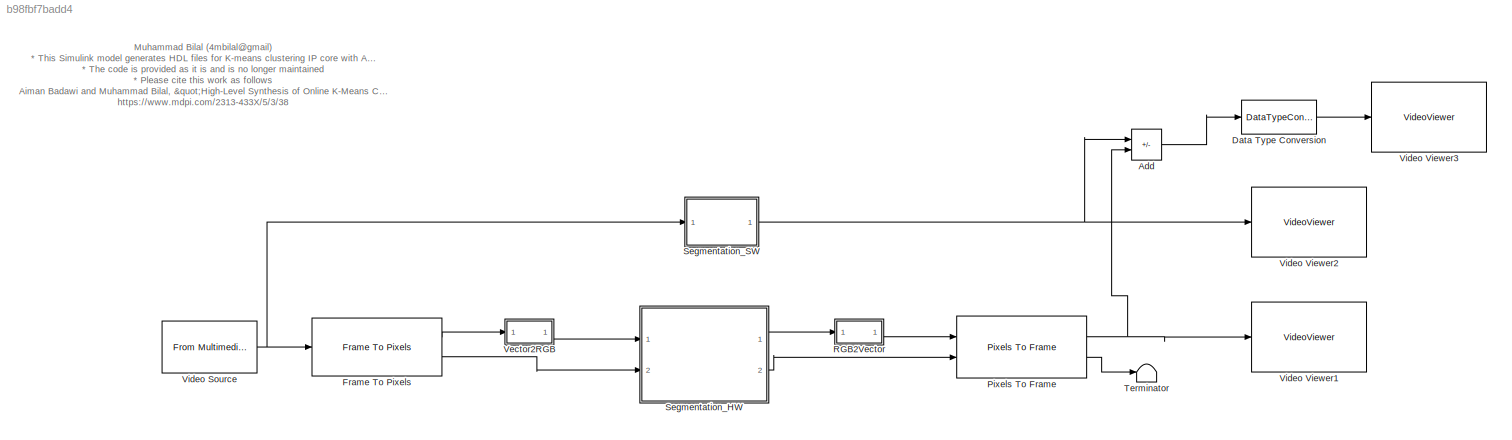
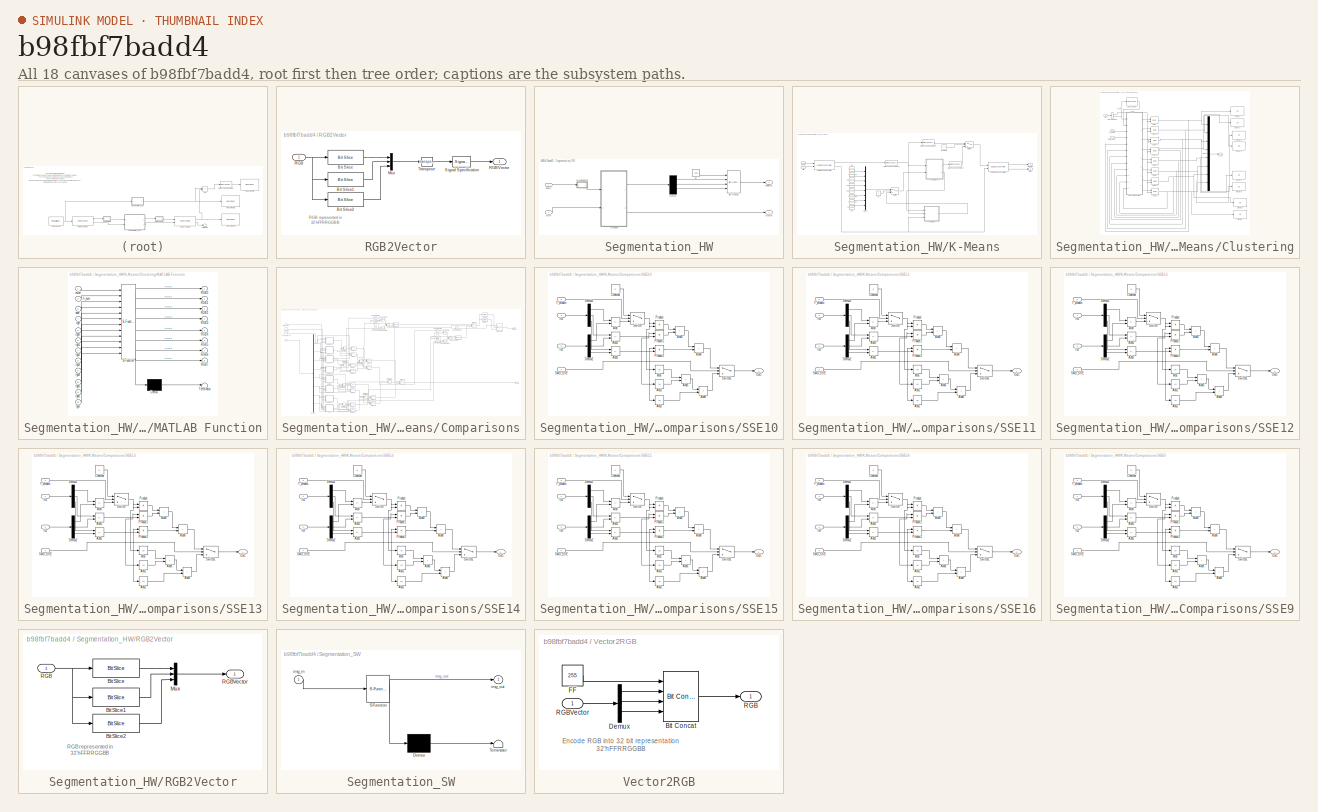
[diagram: thumbnail index - all 18 canvases of the model, root first then tree order]
MODEL slx_b98fbf7badd4
KIND model
CONFIG AbsTol = auto
CONFIG EnableMultiTasking = off
CONFIG FixedStep = auto
CONFIG InitFcn = Ts = 1e-3;\nTs_240p = 402*324*Ts;\nTs_480p = 525*800*Ts;\n\n
CONFIG MaxStep = auto
CONFIG MinStep = auto
CONFIG RelTol = 1e-3
CONFIG SampleTimeConstraint = Unconstrained
CONFIG SolverName = FixedStepDiscrete
CONFIG StartTime = 0.0
CONFIG StopTime = Ts_240p*20
BLOCK [Sum] Add
  IconShape = rectangular
  Inputs = +-
  Ports = [2, 1]
BLOCK [DataTypeConversion] Data Type Conversion
  RndMeth = Floor
  SaturateOnIntegerOverflow = off
BLOCK [Reference] Frame To Pixels  REF=visionhdlio/Frame To Pixels
  Ports = [1, 2]
  SourceBlock = visionhdlio/Frame To Pixels
  SourceProductBaseCode = VT
  SourceType = Frame To Pixels
BLOCK [Reference] Pixels To Frame  REF=visionhdlio/Pixels To Frame
  Ports = [2, 2]
  SourceBlock = visionhdlio/Pixels To Frame
  SourceProductBaseCode = VT
  SourceType = Pixels To Frame
BLOCK [SubSystem] RGB2Vector
  Ports = [1, 1]
  RequestExecContextInheritance = off
  ShowPortLabels = none
BLOCK [Reference] RGB2Vector/Bit Slice  REF=hdlsllib/Logic and Bit
Operations/Bit Slice
  Ports = [1, 1]
  SourceBlock = hdlsllib/Logic and Bit\nOperations/Bit Slice
  SourceProductBaseCode = SL
  SourceType = Bit Slice
BLOCK [Reference] RGB2Vector/Bit Slice1  REF=hdlsllib/Logic and Bit
Operations/Bit Slice
  Ports = [1, 1]
  SourceBlock = hdlsllib/Logic and Bit\nOperations/Bit Slice
  SourceProductBaseCode = SL
  SourceType = Bit Slice
BLOCK [Reference] RGB2Vector/Bit Slice2  REF=hdlsllib/Logic and Bit
Operations/Bit Slice
  Ports = [1, 1]
  SourceBlock = hdlsllib/Logic and Bit\nOperations/Bit Slice
  SourceProductBaseCode = SL
  SourceType = Bit Slice
BLOCK [Mux] RGB2Vector/Mux
  DisplayOption = bar
  Inputs = 3
  Ports = [3, 1]
BLOCK [Inport] RGB2Vector/RGB
BLOCK [Outport] RGB2Vector/RGBVector
  VectorParamsAs1DForOutWhenUnconnected = off
BLOCK [SignalSpecification] RGB2Vector/Signal Specification
  SignalType = real
BLOCK [Math] RGB2Vector/Transpose
  Operator = transpose
  Ports = [1, 1]
  SignedPower = on
BLOCK [SubSystem] Segmentation_HW
  Ports = [2, 2]
  RequestExecContextInheritance = off
  TreatAsAtomicUnit = on
BLOCK [Reference] Segmentation_HW/Bit Concat  REF=hdlsllib/Logic and Bit
Operations/Bit Concat
  Ports = [4, 1]
  SourceBlock = hdlsllib/Logic and Bit\nOperations/Bit Concat
  SourceProductBaseCode = SL
  SourceType = Bit Concat
BLOCK [Demux] Segmentation_HW/Demux
  Outputs = 3
  Ports = [1, 3]
BLOCK [Constant] Segmentation_HW/FF
  OutDataTypeStr = uint8
  SampleTime = Ts
  Value = 255
BLOCK [SubSystem] Segmentation_HW/K-Means
  Ports = [2, 2]
  RequestExecContextInheritance = off
  TreatAsAtomicUnit = on
BLOCK [SubSystem] Segmentation_HW/K-Means/Clustering
  Ports = [3, 1]
  RequestExecContextInheritance = off
BLOCK [BusSelector] Segmentation_HW/K-Means/Clustering/Bus Selector1
  OutputSignals = valid,vStart
  Ports = [1, 2]
BLOCK [Inport] Segmentation_HW/K-Means/Clustering/Ctrl
  Port = 3
BLOCK [Delay] Segmentation_HW/K-Means/Clustering/Delay
  DelayLength = 1
  InitialCondition = 0
  InputPortMap = u0,e6
  Ports = [2, 1]
  ShowEnablePort = on
BLOCK [Delay] Segmentation_HW/K-Means/Clustering/Delay1
  DelayLength = 1
  InitialCondition = 0
  InputPortMap = u0,e6
  Ports = [2, 1]
  ShowEnablePort = on
BLOCK [Delay] Segmentation_HW/K-Means/Clustering/Delay2
  DelayLength = 1
  InitialCondition = 0
  InputPortMap = u0,e6
  Ports = [2, 1]
  ShowEnablePort = on
BLOCK [Delay] Segmentation_HW/K-Means/Clustering/Delay3
  DelayLength = 1
  InitialCondition = 0
  InputPortMap = u0,e6
  Ports = [2, 1]
  ShowEnablePort = on
BLOCK [Delay] Segmentation_HW/K-Means/Clustering/Delay4
  DelayLength = 1
  InitialCondition = 0
  InputPortMap = u0,e6
  Ports = [2, 1]
  ShowEnablePort = on
BLOCK [Delay] Segmentation_HW/K-Means/Clustering/Delay5
  DelayLength = 1
  InitialCondition = 0
  InputPortMap = u0,e6
  Ports = [2, 1]
  ShowEnablePort = on
BLOCK [Delay] Segmentation_HW/K-Means/Clustering/Delay6
  DelayLength = 1
  InitialCondition = 0
  InputPortMap = u0,e6
  Ports = [2, 1]
  ShowEnablePort = on
BLOCK [Delay] Segmentation_HW/K-Means/Clustering/Delay7
  DelayLength = 1
  InitialCondition = 0
  InputPortMap = u0,e6
  Ports = [2, 1]
  ShowEnablePort = on
BLOCK [Display] Segmentation_HW/K-Means/Clustering/Display
  Decimation = 1
  Ports = [1]
BLOCK [Display] Segmentation_HW/K-Means/Clustering/Display1
  Decimation = 1
  Ports = [1]
BLOCK [Display] Segmentation_HW/K-Means/Clustering/Display2
  Decimation = 1
  Ports = [1]
BLOCK [Display] Segmentation_HW/K-Means/Clustering/Display3
  Decimation = 1
  Ports = [1]
BLOCK [Display] Segmentation_HW/K-Means/Clustering/Display4
  Decimation = 1
  Ports = [1]
BLOCK [Display] Segmentation_HW/K-Means/Clustering/Display5
  Decimation = 1
  Ports = [1]
BLOCK [Display] Segmentation_HW/K-Means/Clustering/Display6
  Decimation = 1
  Ports = [1]
BLOCK [Display] Segmentation_HW/K-Means/Clustering/Display7
  Decimation = 1
  Ports = [1]
BLOCK [Reference] Segmentation_HW/K-Means/Clustering/HDL Counter  REF=hdlsllib/Sources/HDL Counter
  Ports = [1, 1]
  SourceBlock = hdlsllib/Sources/HDL Counter
  SourceProductBaseCode = SL
  SourceType = HDL Counter
BLOCK [Inport] Segmentation_HW/K-Means/Clustering/K_addr
BLOCK [Outport] Segmentation_HW/K-Means/Clustering/K_out
  VectorParamsAs1DForOutWhenUnconnected = off
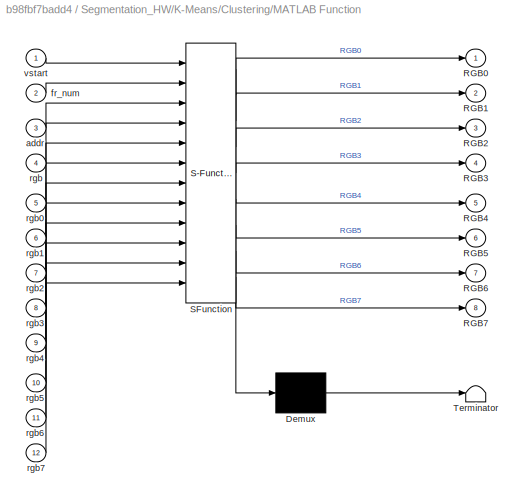
BLOCK [SubSystem] Segmentation_HW/K-Means/Clustering/MATLAB Function
  ErrorFcn = Stateflow.Translate.translate
  PermitHierarchicalResolution = ExplicitOnly
  Ports = [12, 8]
  RequestExecContextInheritance = off
  SFBlockType = MATLAB Function
  TreatAsAtomicUnit = on
BLOCK [Demux] Segmentation_HW/K-Means/Clustering/MATLAB Function/ Demux 
  Outputs = 1
  Ports = [1, 1]
BLOCK [S-Function] Segmentation_HW/K-Means/Clustering/MATLAB Function/ SFunction 
  EnableBusSupport = on
  FunctionName = sf_sfun
  PortCounts = [12 9]
  Ports = [12, 9]
  SFcnIsStateOwnerBlock = off
  SFunctionDeploymentMode = off
  Tag = Stateflow S-Function 1
BLOCK [Terminator] Segmentation_HW/K-Means/Clustering/MATLAB Function/ Terminator 
BLOCK [Outport] Segmentation_HW/K-Means/Clustering/MATLAB Function/RGB0
  VectorParamsAs1DForOutWhenUnconnected = off
BLOCK [Outport] Segmentation_HW/K-Means/Clustering/MATLAB Function/RGB1
  Port = 2
  VectorParamsAs1DForOutWhenUnconnected = off
BLOCK [Outport] Segmentation_HW/K-Means/Clustering/MATLAB Function/RGB2
  Port = 3
  VectorParamsAs1DForOutWhenUnconnected = off
BLOCK [Outport] Segmentation_HW/K-Means/Clustering/MATLAB Function/RGB3
  Port = 4
  VectorParamsAs1DForOutWhenUnconnected = off
BLOCK [Outport] Segmentation_HW/K-Means/Clustering/MATLAB Function/RGB4
  Port = 5
  VectorParamsAs1DForOutWhenUnconnected = off
BLOCK [Outport] Segmentation_HW/K-Means/Clustering/MATLAB Function/RGB5
  Port = 6
  VectorParamsAs1DForOutWhenUnconnected = off
BLOCK [Outport] Segmentation_HW/K-Means/Clustering/MATLAB Function/RGB6
  Port = 7
  VectorParamsAs1DForOutWhenUnconnected = off
BLOCK [Outport] Segmentation_HW/K-Means/Clustering/MATLAB Function/RGB7
  Port = 8
  VectorParamsAs1DForOutWhenUnconnected = off
BLOCK [Inport] Segmentation_HW/K-Means/Clustering/MATLAB Function/addr
  Port = 3
BLOCK [Inport] Segmentation_HW/K-Means/Clustering/MATLAB Function/fr_num
  Port = 2
BLOCK [Inport] Segmentation_HW/K-Means/Clustering/MATLAB Function/rgb
  Port = 4
BLOCK [Inport] Segmentation_HW/K-Means/Clustering/MATLAB Function/rgb0
  Port = 5
BLOCK [Inport] Segmentation_HW/K-Means/Clustering/MATLAB Function/rgb1
  Port = 6
BLOCK [Inport] Segmentation_HW/K-Means/Clustering/MATLAB Function/rgb2
  Port = 7
BLOCK [Inport] Segmentation_HW/K-Means/Clustering/MATLAB Function/rgb3
  Port = 8
BLOCK [Inport] Segmentation_HW/K-Means/Clustering/MATLAB Function/rgb4
  Port = 9
BLOCK [Inport] Segmentation_HW/K-Means/Clustering/MATLAB Function/rgb5
  Port = 10
BLOCK [Inport] Segmentation_HW/K-Means/Clustering/MATLAB Function/rgb6
  Port = 11
BLOCK [Inport] Segmentation_HW/K-Means/Clustering/MATLAB Function/rgb7
  Port = 12
BLOCK [Inport] Segmentation_HW/K-Means/Clustering/MATLAB Function/vstart
BLOCK [Mux] Segmentation_HW/K-Means/Clustering/Mux2
  DisplayOption = bar
  Inputs = 8
  Ports = [8, 1]
BLOCK [Inport] Segmentation_HW/K-Means/Clustering/RGB_pixel
  Port = 2
BLOCK [Reference] Segmentation_HW/K-Means/Color Space Converter  REF=visionhdlconversions/Color Space Converter
  Ports = [2, 2]
  SourceBlock = visionhdlconversions/Color Space Converter
  SourceProductBaseCode = VT
  SourceType = Color Space Converter
BLOCK [Reference] Segmentation_HW/K-Means/Color Space Converter1  REF=visionhdlconversions/Color Space Converter
  Ports = [2, 2]
  SourceBlock = visionhdlconversions/Color Space Converter
  SourceProductBaseCode = VT
  SourceType = Color Space Converter
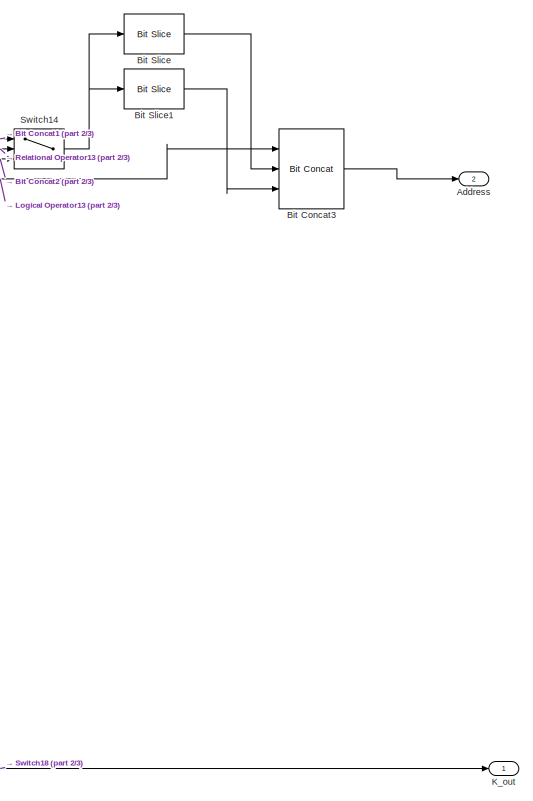
[diagram: Segmentation_HW/K-Means/Comparisons - part 1/3, middle right region]
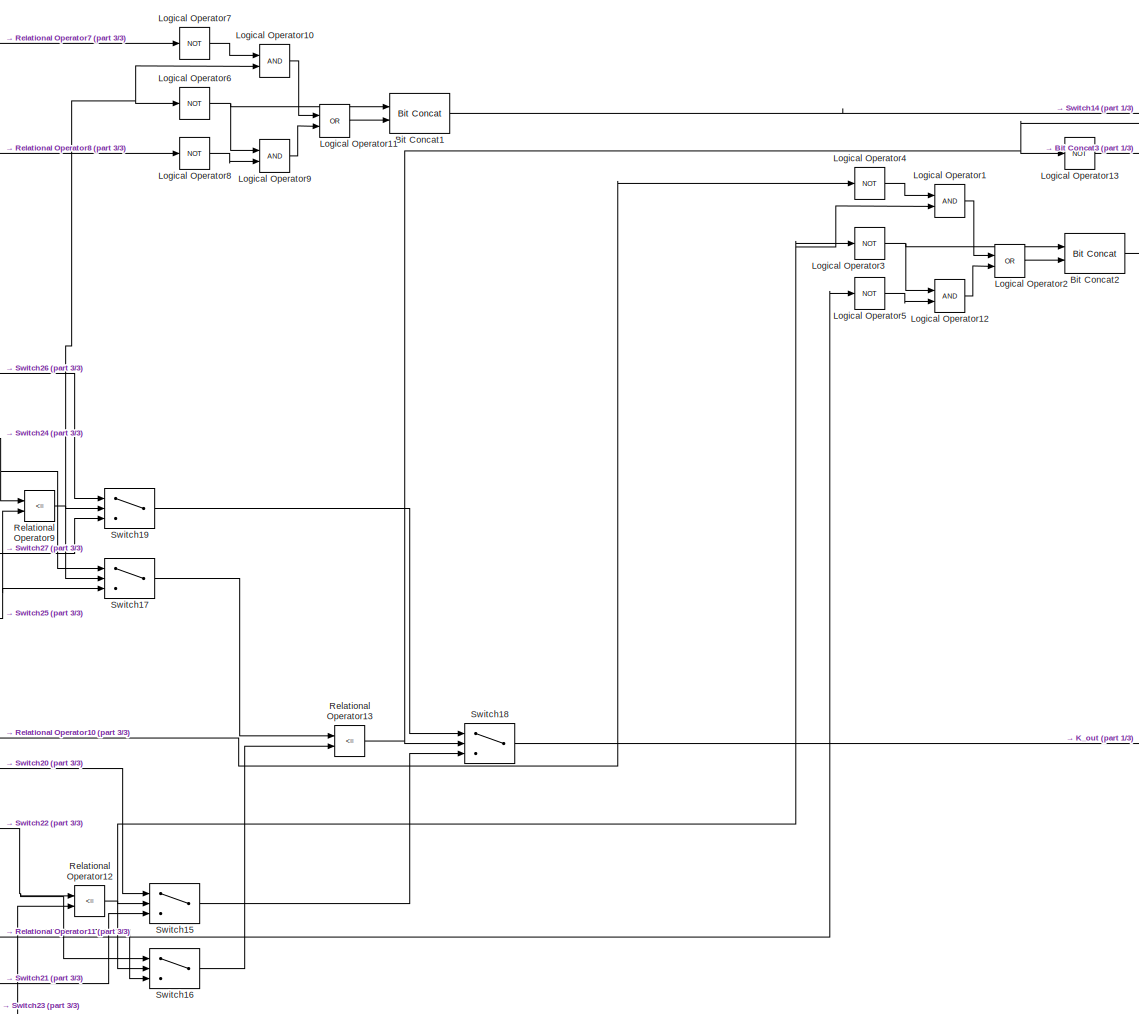
[diagram: Segmentation_HW/K-Means/Comparisons - part 2/3, center side, full height]
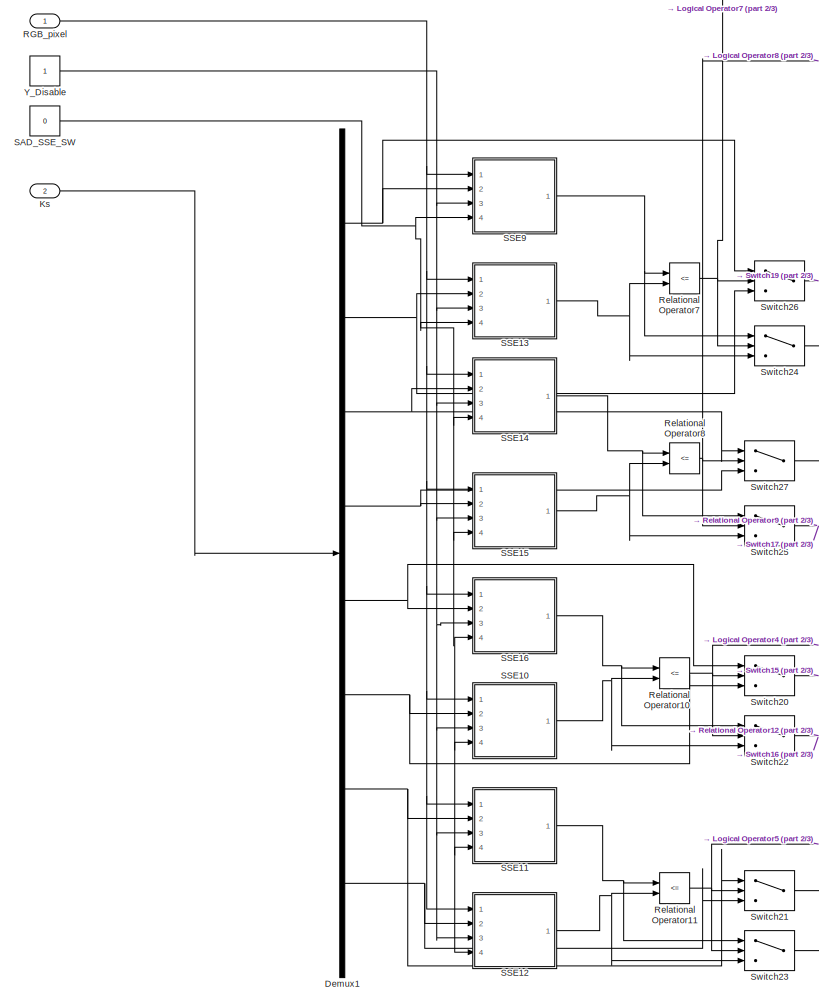
[diagram: Segmentation_HW/K-Means/Comparisons - part 3/3, left side, full height]
BLOCK [SubSystem] Segmentation_HW/K-Means/Comparisons
  Ports = [2, 2]
  RequestExecContextInheritance = off
BLOCK [Outport] Segmentation_HW/K-Means/Comparisons/Address
  Port = 2
  VectorParamsAs1DForOutWhenUnconnected = off
BLOCK [Reference] Segmentation_HW/K-Means/Comparisons/Bit Concat1  REF=hdlsllib/Logic and Bit
Operations/Bit Concat
  Ports = [2, 1]
  SourceBlock = hdlsllib/Logic and Bit\nOperations/Bit Concat
  SourceProductBaseCode = SL
  SourceType = Bit Concat
BLOCK [Reference] Segmentation_HW/K-Means/Comparisons/Bit Concat2  REF=hdlsllib/Logic and Bit
Operations/Bit Concat
  Ports = [2, 1]
  SourceBlock = hdlsllib/Logic and Bit\nOperations/Bit Concat
  SourceProductBaseCode = SL
  SourceType = Bit Concat
BLOCK [Reference] Segmentation_HW/K-Means/Comparisons/Bit Concat3  REF=hdlsllib/Logic and Bit
Operations/Bit Concat
  Ports = [3, 1]
  SourceBlock = hdlsllib/Logic and Bit\nOperations/Bit Concat
  SourceProductBaseCode = SL
  SourceType = Bit Concat
BLOCK [Reference] Segmentation_HW/K-Means/Comparisons/Bit Slice  REF=hdlsllib/Logic and Bit
Operations/Bit Slice
  Ports = [1, 1]
  SourceBlock = hdlsllib/Logic and Bit\nOperations/Bit Slice
  SourceProductBaseCode = SL
  SourceType = Bit Slice
BLOCK [Reference] Segmentation_HW/K-Means/Comparisons/Bit Slice1  REF=hdlsllib/Logic and Bit
Operations/Bit Slice
  Ports = [1, 1]
  SourceBlock = hdlsllib/Logic and Bit\nOperations/Bit Slice
  SourceProductBaseCode = SL
  SourceType = Bit Slice
BLOCK [Demux] Segmentation_HW/K-Means/Comparisons/Demux1
  Outputs = 8
  Ports = [1, 8]
BLOCK [Outport] Segmentation_HW/K-Means/Comparisons/K_out
  VectorParamsAs1DForOutWhenUnconnected = off
BLOCK [Inport] Segmentation_HW/K-Means/Comparisons/Ks
  Port = 2
BLOCK [Logic] Segmentation_HW/K-Means/Comparisons/Logical Operator1
  AllPortsSameDT = off
  OutDataTypeStr = boolean
  Ports = [2, 1]
BLOCK [Logic] Segmentation_HW/K-Means/Comparisons/Logical Operator10
  AllPortsSameDT = off
  OutDataTypeStr = boolean
  Ports = [2, 1]
BLOCK [Logic] Segmentation_HW/K-Means/Comparisons/Logical Operator11
  AllPortsSameDT = off
  Operator = OR
  OutDataTypeStr = boolean
  Ports = [2, 1]
BLOCK [Logic] Segmentation_HW/K-Means/Comparisons/Logical Operator12
  AllPortsSameDT = off
  OutDataTypeStr = boolean
  Ports = [2, 1]
BLOCK [Logic] Segmentation_HW/K-Means/Comparisons/Logical Operator13
  AllPortsSameDT = off
  Operator = NOT
  OutDataTypeStr = boolean
  Ports = [1, 1]
BLOCK [Logic] Segmentation_HW/K-Means/Comparisons/Logical Operator2
  AllPortsSameDT = off
  Operator = OR
  OutDataTypeStr = boolean
  Ports = [2, 1]
BLOCK [Logic] Segmentation_HW/K-Means/Comparisons/Logical Operator3
  AllPortsSameDT = off
  Operator = NOT
  OutDataTypeStr = boolean
  Ports = [1, 1]
BLOCK [Logic] Segmentation_HW/K-Means/Comparisons/Logical Operator4
  AllPortsSameDT = off
  Operator = NOT
  OutDataTypeStr = boolean
  Ports = [1, 1]
BLOCK [Logic] Segmentation_HW/K-Means/Comparisons/Logical Operator5
  AllPortsSameDT = off
  Operator = NOT
  OutDataTypeStr = boolean
  Ports = [1, 1]
BLOCK [Logic] Segmentation_HW/K-Means/Comparisons/Logical Operator6
  AllPortsSameDT = off
  Operator = NOT
  OutDataTypeStr = boolean
  Ports = [1, 1]
BLOCK [Logic] Segmentation_HW/K-Means/Comparisons/Logical Operator7
  AllPortsSameDT = off
  Operator = NOT
  OutDataTypeStr = boolean
  Ports = [1, 1]
BLOCK [Logic] Segmentation_HW/K-Means/Comparisons/Logical Operator8
  AllPortsSameDT = off
  Operator = NOT
  OutDataTypeStr = boolean
  Ports = [1, 1]
BLOCK [Logic] Segmentation_HW/K-Means/Comparisons/Logical Operator9
  AllPortsSameDT = off
  OutDataTypeStr = boolean
  Ports = [2, 1]
BLOCK [Inport] Segmentation_HW/K-Means/Comparisons/RGB_pixel
BLOCK [RelationalOperator] Segmentation_HW/K-Means/Comparisons/Relational Operator10
  InputSameDT = off
  Operator = <=
  OutDataTypeStr = boolean
  Ports = [2, 1]
BLOCK [RelationalOperator] Segmentation_HW/K-Means/Comparisons/Relational Operator11
  InputSameDT = off
  Operator = <=
  OutDataTypeStr = boolean
  Ports = [2, 1]
BLOCK [RelationalOperator] Segmentation_HW/K-Means/Comparisons/Relational Operator12
  InputSameDT = off
  Operator = <=
  OutDataTypeStr = boolean
  Ports = [2, 1]
BLOCK [RelationalOperator] Segmentation_HW/K-Means/Comparisons/Relational Operator13
  InputSameDT = off
  Operator = <=
  OutDataTypeStr = boolean
  Ports = [2, 1]
BLOCK [RelationalOperator] Segmentation_HW/K-Means/Comparisons/Relational Operator7
  InputSameDT = off
  Operator = <=
  OutDataTypeStr = boolean
  Ports = [2, 1]
BLOCK [RelationalOperator] Segmentation_HW/K-Means/Comparisons/Relational Operator8
  InputSameDT = off
  Operator = <=
  OutDataTypeStr = boolean
  Ports = [2, 1]
BLOCK [RelationalOperator] Segmentation_HW/K-Means/Comparisons/Relational Operator9
  InputSameDT = off
  Operator = <=
  OutDataTypeStr = boolean
  Ports = [2, 1]
BLOCK [Constant] Segmentation_HW/K-Means/Comparisons/SAD_SSE_SW
  OutDataTypeStr = fixdt(1,18,8)
  Value = 0
BLOCK [SubSystem] Segmentation_HW/K-Means/Comparisons/SSE10
  Ports = [4, 1]
  RequestExecContextInheritance = off
BLOCK [Abs] Segmentation_HW/K-Means/Comparisons/SSE10/Abs
  SaturateOnIntegerOverflow = off
BLOCK [Abs] Segmentation_HW/K-Means/Comparisons/SSE10/Abs1
  SaturateOnIntegerOverflow = off
BLOCK [Abs] Segmentation_HW/K-Means/Comparisons/SSE10/Abs2
  SaturateOnIntegerOverflow = off
BLOCK [Sum] Segmentation_HW/K-Means/Comparisons/SSE10/Add
  IconShape = rectangular
  Inputs = +-
  OutDataTypeStr = Inherit: Inherit via back propagation
  Ports = [2, 1]
BLOCK [Sum] Segmentation_HW/K-Means/Comparisons/SSE10/Add1
  IconShape = rectangular
  Inputs = +-
  OutDataTypeStr = Inherit: Inherit via back propagation
  Ports = [2, 1]
BLOCK [Sum] Segmentation_HW/K-Means/Comparisons/SSE10/Add2
  IconShape = rectangular
  Inputs = +-
  OutDataTypeStr = Inherit: Inherit via back propagation
  Ports = [2, 1]
BLOCK [Sum] Segmentation_HW/K-Means/Comparisons/SSE10/Add3
  IconShape = rectangular
  Ports = [2, 1]
BLOCK [Sum] Segmentation_HW/K-Means/Comparisons/SSE10/Add4
  IconShape = rectangular
  Ports = [2, 1]
BLOCK [Sum] Segmentation_HW/K-Means/Comparisons/SSE10/Add5
  IconShape = rectangular
  Ports = [2, 1]
BLOCK [Sum] Segmentation_HW/K-Means/Comparisons/SSE10/Add6
  IconShape = rectangular
  Ports = [2, 1]
BLOCK [Constant] Segmentation_HW/K-Means/Comparisons/SSE10/Constant
  OutDataTypeStr = fixdt(1,18,8)
  Value = 0
BLOCK [Demux] Segmentation_HW/K-Means/Comparisons/SSE10/Demux1
  Outputs = 3
  Ports = [1, 3]
BLOCK [Demux] Segmentation_HW/K-Means/Comparisons/SSE10/Demux2
  Outputs = 3
  Ports = [1, 3]
BLOCK [Inport] Segmentation_HW/K-Means/Comparisons/SSE10/In1
BLOCK [Inport] Segmentation_HW/K-Means/Comparisons/SSE10/In2
  Port = 2
BLOCK [Outport] Segmentation_HW/K-Means/Comparisons/SSE10/Out1
  VectorParamsAs1DForOutWhenUnconnected = off
BLOCK [Product] Segmentation_HW/K-Means/Comparisons/SSE10/Product
  Ports = [2, 1]
BLOCK [Product] Segmentation_HW/K-Means/Comparisons/SSE10/Product1
  Ports = [2, 1]
BLOCK [Product] Segmentation_HW/K-Means/Comparisons/SSE10/Product2
  Ports = [2, 1]
BLOCK [Inport] Segmentation_HW/K-Means/Comparisons/SSE10/SAD_SSE
  Port = 4
BLOCK [Switch] Segmentation_HW/K-Means/Comparisons/SSE10/Switch
  InputSameDT = off
  SaturateOnIntegerOverflow = off
  Threshold = 0.5
BLOCK [Switch] Segmentation_HW/K-Means/Comparisons/SSE10/Switch1
  InputSameDT = off
  SaturateOnIntegerOverflow = off
  Threshold = 0.5
BLOCK [Inport] Segmentation_HW/K-Means/Comparisons/SSE10/Y_disable
  Port = 3
BLOCK [SubSystem] Segmentation_HW/K-Means/Comparisons/SSE11
  Ports = [4, 1]
  RequestExecContextInheritance = off
BLOCK [Abs] Segmentation_HW/K-Means/Comparisons/SSE11/Abs
  SaturateOnIntegerOverflow = off
BLOCK [Abs] Segmentation_HW/K-Means/Comparisons/SSE11/Abs1
  SaturateOnIntegerOverflow = off
BLOCK [Abs] Segmentation_HW/K-Means/Comparisons/SSE11/Abs2
  SaturateOnIntegerOverflow = off
BLOCK [Sum] Segmentation_HW/K-Means/Comparisons/SSE11/Add
  IconShape = rectangular
  Inputs = +-
  OutDataTypeStr = Inherit: Inherit via back propagation
  Ports = [2, 1]
BLOCK [Sum] Segmentation_HW/K-Means/Comparisons/SSE11/Add1
  IconShape = rectangular
  Inputs = +-
  OutDataTypeStr = Inherit: Inherit via back propagation
  Ports = [2, 1]
BLOCK [Sum] Segmentation_HW/K-Means/Comparisons/SSE11/Add2
  IconShape = rectangular
  Inputs = +-
  OutDataTypeStr = Inherit: Inherit via back propagation
  Ports = [2, 1]
BLOCK [Sum] Segmentation_HW/K-Means/Comparisons/SSE11/Add3
  IconShape = rectangular
  Ports = [2, 1]
BLOCK [Sum] Segmentation_HW/K-Means/Comparisons/SSE11/Add4
  IconShape = rectangular
  Ports = [2, 1]
BLOCK [Sum] Segmentation_HW/K-Means/Comparisons/SSE11/Add5
  IconShape = rectangular
  Ports = [2, 1]
BLOCK [Sum] Segmentation_HW/K-Means/Comparisons/SSE11/Add6
  IconShape = rectangular
  Ports = [2, 1]
BLOCK [Constant] Segmentation_HW/K-Means/Comparisons/SSE11/Constant
  OutDataTypeStr = fixdt(1,18,8)
  Value = 0
BLOCK [Demux] Segmentation_HW/K-Means/Comparisons/SSE11/Demux1
  Outputs = 3
  Ports = [1, 3]
BLOCK [Demux] Segmentation_HW/K-Means/Comparisons/SSE11/Demux2
  Outputs = 3
  Ports = [1, 3]
BLOCK [Inport] Segmentation_HW/K-Means/Comparisons/SSE11/In1
BLOCK [Inport] Segmentation_HW/K-Means/Comparisons/SSE11/In2
  Port = 2
BLOCK [Outport] Segmentation_HW/K-Means/Comparisons/SSE11/Out1
  VectorParamsAs1DForOutWhenUnconnected = off
BLOCK [Product] Segmentation_HW/K-Means/Comparisons/SSE11/Product
  Ports = [2, 1]
BLOCK [Product] Segmentation_HW/K-Means/Comparisons/SSE11/Product1
  Ports = [2, 1]
BLOCK [Product] Segmentation_HW/K-Means/Comparisons/SSE11/Product2
  Ports = [2, 1]
BLOCK [Inport] Segmentation_HW/K-Means/Comparisons/SSE11/SAD_SSE
  Port = 4
BLOCK [Switch] Segmentation_HW/K-Means/Comparisons/SSE11/Switch
  InputSameDT = off
  SaturateOnIntegerOverflow = off
  Threshold = 0.5
BLOCK [Switch] Segmentation_HW/K-Means/Comparisons/SSE11/Switch1
  InputSameDT = off
  SaturateOnIntegerOverflow = off
  Threshold = 0.5
BLOCK [Inport] Segmentation_HW/K-Means/Comparisons/SSE11/Y_disable
  Port = 3
BLOCK [SubSystem] Segmentation_HW/K-Means/Comparisons/SSE12
  Ports = [4, 1]
  RequestExecContextInheritance = off
BLOCK [Abs] Segmentation_HW/K-Means/Comparisons/SSE12/Abs
  SaturateOnIntegerOverflow = off
BLOCK [Abs] Segmentation_HW/K-Means/Comparisons/SSE12/Abs1
  SaturateOnIntegerOverflow = off
BLOCK [Abs] Segmentation_HW/K-Means/Comparisons/SSE12/Abs2
  SaturateOnIntegerOverflow = off
BLOCK [Sum] Segmentation_HW/K-Means/Comparisons/SSE12/Add
  IconShape = rectangular
  Inputs = +-
  OutDataTypeStr = Inherit: Inherit via back propagation
  Ports = [2, 1]
BLOCK [Sum] Segmentation_HW/K-Means/Comparisons/SSE12/Add1
  IconShape = rectangular
  Inputs = +-
  OutDataTypeStr = Inherit: Inherit via back propagation
  Ports = [2, 1]
BLOCK [Sum] Segmentation_HW/K-Means/Comparisons/SSE12/Add2
  IconShape = rectangular
  Inputs = +-
  OutDataTypeStr = Inherit: Inherit via back propagation
  Ports = [2, 1]
BLOCK [Sum] Segmentation_HW/K-Means/Comparisons/SSE12/Add3
  IconShape = rectangular
  Ports = [2, 1]
BLOCK [Sum] Segmentation_HW/K-Means/Comparisons/SSE12/Add4
  IconShape = rectangular
  Ports = [2, 1]
BLOCK [Sum] Segmentation_HW/K-Means/Comparisons/SSE12/Add5
  IconShape = rectangular
  Ports = [2, 1]
BLOCK [Sum] Segmentation_HW/K-Means/Comparisons/SSE12/Add6
  IconShape = rectangular
  Ports = [2, 1]
BLOCK [Constant] Segmentation_HW/K-Means/Comparisons/SSE12/Constant
  OutDataTypeStr = fixdt(1,18,8)
  Value = 0
BLOCK [Demux] Segmentation_HW/K-Means/Comparisons/SSE12/Demux1
  Outputs = 3
  Ports = [1, 3]
BLOCK [Demux] Segmentation_HW/K-Means/Comparisons/SSE12/Demux2
  Outputs = 3
  Ports = [1, 3]
BLOCK [Inport] Segmentation_HW/K-Means/Comparisons/SSE12/In1
BLOCK [Inport] Segmentation_HW/K-Means/Comparisons/SSE12/In2
  Port = 2
BLOCK [Outport] Segmentation_HW/K-Means/Comparisons/SSE12/Out1
  VectorParamsAs1DForOutWhenUnconnected = off
BLOCK [Product] Segmentation_HW/K-Means/Comparisons/SSE12/Product
  Ports = [2, 1]
BLOCK [Product] Segmentation_HW/K-Means/Comparisons/SSE12/Product1
  Ports = [2, 1]
BLOCK [Product] Segmentation_HW/K-Means/Comparisons/SSE12/Product2
  Ports = [2, 1]
BLOCK [Inport] Segmentation_HW/K-Means/Comparisons/SSE12/SAD_SSE
  Port = 4
BLOCK [Switch] Segmentation_HW/K-Means/Comparisons/SSE12/Switch
  InputSameDT = off
  SaturateOnIntegerOverflow = off
  Threshold = 0.5
BLOCK [Switch] Segmentation_HW/K-Means/Comparisons/SSE12/Switch1
  InputSameDT = off
  SaturateOnIntegerOverflow = off
  Threshold = 0.5
BLOCK [Inport] Segmentation_HW/K-Means/Comparisons/SSE12/Y_disable
  Port = 3
BLOCK [SubSystem] Segmentation_HW/K-Means/Comparisons/SSE13
  Ports = [4, 1]
  RequestExecContextInheritance = off
BLOCK [Abs] Segmentation_HW/K-Means/Comparisons/SSE13/Abs
  SaturateOnIntegerOverflow = off
BLOCK [Abs] Segmentation_HW/K-Means/Comparisons/SSE13/Abs1
  SaturateOnIntegerOverflow = off
BLOCK [Abs] Segmentation_HW/K-Means/Comparisons/SSE13/Abs2
  SaturateOnIntegerOverflow = off
BLOCK [Sum] Segmentation_HW/K-Means/Comparisons/SSE13/Add
  IconShape = rectangular
  Inputs = +-
  OutDataTypeStr = Inherit: Inherit via back propagation
  Ports = [2, 1]
BLOCK [Sum] Segmentation_HW/K-Means/Comparisons/SSE13/Add1
  IconShape = rectangular
  Inputs = +-
  OutDataTypeStr = Inherit: Inherit via back propagation
  Ports = [2, 1]
BLOCK [Sum] Segmentation_HW/K-Means/Comparisons/SSE13/Add2
  IconShape = rectangular
  Inputs = +-
  OutDataTypeStr = Inherit: Inherit via back propagation
  Ports = [2, 1]
BLOCK [Sum] Segmentation_HW/K-Means/Comparisons/SSE13/Add3
  IconShape = rectangular
  Ports = [2, 1]
BLOCK [Sum] Segmentation_HW/K-Means/Comparisons/SSE13/Add4
  IconShape = rectangular
  Ports = [2, 1]
BLOCK [Sum] Segmentation_HW/K-Means/Comparisons/SSE13/Add5
  IconShape = rectangular
  Ports = [2, 1]
BLOCK [Sum] Segmentation_HW/K-Means/Comparisons/SSE13/Add6
  IconShape = rectangular
  Ports = [2, 1]
BLOCK [Constant] Segmentation_HW/K-Means/Comparisons/SSE13/Constant
  OutDataTypeStr = fixdt(1,18,8)
  Value = 0
BLOCK [Demux] Segmentation_HW/K-Means/Comparisons/SSE13/Demux1
  Outputs = 3
  Ports = [1, 3]
BLOCK [Demux] Segmentation_HW/K-Means/Comparisons/SSE13/Demux2
  Outputs = 3
  Ports = [1, 3]
BLOCK [Inport] Segmentation_HW/K-Means/Comparisons/SSE13/In1
BLOCK [Inport] Segmentation_HW/K-Means/Comparisons/SSE13/In2
  Port = 2
BLOCK [Outport] Segmentation_HW/K-Means/Comparisons/SSE13/Out1
  VectorParamsAs1DForOutWhenUnconnected = off
BLOCK [Product] Segmentation_HW/K-Means/Comparisons/SSE13/Product
  Ports = [2, 1]
BLOCK [Product] Segmentation_HW/K-Means/Comparisons/SSE13/Product1
  Ports = [2, 1]
BLOCK [Product] Segmentation_HW/K-Means/Comparisons/SSE13/Product2
  Ports = [2, 1]
BLOCK [Inport] Segmentation_HW/K-Means/Comparisons/SSE13/SAD_SSE
  Port = 4
BLOCK [Switch] Segmentation_HW/K-Means/Comparisons/SSE13/Switch
  InputSameDT = off
  SaturateOnIntegerOverflow = off
  Threshold = 0.5
BLOCK [Switch] Segmentation_HW/K-Means/Comparisons/SSE13/Switch1
  InputSameDT = off
  SaturateOnIntegerOverflow = off
  Threshold = 0.5
BLOCK [Inport] Segmentation_HW/K-Means/Comparisons/SSE13/Y_disable
  Port = 3
BLOCK [SubSystem] Segmentation_HW/K-Means/Comparisons/SSE14
  Ports = [4, 1]
  RequestExecContextInheritance = off
BLOCK [Abs] Segmentation_HW/K-Means/Comparisons/SSE14/Abs
  SaturateOnIntegerOverflow = off
BLOCK [Abs] Segmentation_HW/K-Means/Comparisons/SSE14/Abs1
  SaturateOnIntegerOverflow = off
BLOCK [Abs] Segmentation_HW/K-Means/Comparisons/SSE14/Abs2
  SaturateOnIntegerOverflow = off
BLOCK [Sum] Segmentation_HW/K-Means/Comparisons/SSE14/Add
  IconShape = rectangular
  Inputs = +-
  OutDataTypeStr = Inherit: Inherit via back propagation
  Ports = [2, 1]
BLOCK [Sum] Segmentation_HW/K-Means/Comparisons/SSE14/Add1
  IconShape = rectangular
  Inputs = +-
  OutDataTypeStr = Inherit: Inherit via back propagation
  Ports = [2, 1]
BLOCK [Sum] Segmentation_HW/K-Means/Comparisons/SSE14/Add2
  IconShape = rectangular
  Inputs = +-
  OutDataTypeStr = Inherit: Inherit via back propagation
  Ports = [2, 1]
BLOCK [Sum] Segmentation_HW/K-Means/Comparisons/SSE14/Add3
  IconShape = rectangular
  Ports = [2, 1]
BLOCK [Sum] Segmentation_HW/K-Means/Comparisons/SSE14/Add4
  IconShape = rectangular
  Ports = [2, 1]
BLOCK [Sum] Segmentation_HW/K-Means/Comparisons/SSE14/Add5
  IconShape = rectangular
  Ports = [2, 1]
BLOCK [Sum] Segmentation_HW/K-Means/Comparisons/SSE14/Add6
  IconShape = rectangular
  Ports = [2, 1]
BLOCK [Constant] Segmentation_HW/K-Means/Comparisons/SSE14/Constant
  OutDataTypeStr = fixdt(1,18,8)
  Value = 0
BLOCK [Demux] Segmentation_HW/K-Means/Comparisons/SSE14/Demux1
  Outputs = 3
  Ports = [1, 3]
BLOCK [Demux] Segmentation_HW/K-Means/Comparisons/SSE14/Demux2
  Outputs = 3
  Ports = [1, 3]
BLOCK [Inport] Segmentation_HW/K-Means/Comparisons/SSE14/In1
BLOCK [Inport] Segmentation_HW/K-Means/Comparisons/SSE14/In2
  Port = 2
BLOCK [Outport] Segmentation_HW/K-Means/Comparisons/SSE14/Out1
  VectorParamsAs1DForOutWhenUnconnected = off
BLOCK [Product] Segmentation_HW/K-Means/Comparisons/SSE14/Product
  Ports = [2, 1]
BLOCK [Product] Segmentation_HW/K-Means/Comparisons/SSE14/Product1
  Ports = [2, 1]
BLOCK [Product] Segmentation_HW/K-Means/Comparisons/SSE14/Product2
  Ports = [2, 1]
BLOCK [Inport] Segmentation_HW/K-Means/Comparisons/SSE14/SAD_SSE
  Port = 4
BLOCK [Switch] Segmentation_HW/K-Means/Comparisons/SSE14/Switch
  InputSameDT = off
  SaturateOnIntegerOverflow = off
  Threshold = 0.5
BLOCK [Switch] Segmentation_HW/K-Means/Comparisons/SSE14/Switch1
  InputSameDT = off
  SaturateOnIntegerOverflow = off
  Threshold = 0.5
BLOCK [Inport] Segmentation_HW/K-Means/Comparisons/SSE14/Y_disable
  Port = 3
BLOCK [SubSystem] Segmentation_HW/K-Means/Comparisons/SSE15
  Ports = [4, 1]
  RequestExecContextInheritance = off
BLOCK [Abs] Segmentation_HW/K-Means/Comparisons/SSE15/Abs
  SaturateOnIntegerOverflow = off
BLOCK [Abs] Segmentation_HW/K-Means/Comparisons/SSE15/Abs1
  SaturateOnIntegerOverflow = off
BLOCK [Abs] Segmentation_HW/K-Means/Comparisons/SSE15/Abs2
  SaturateOnIntegerOverflow = off
BLOCK [Sum] Segmentation_HW/K-Means/Comparisons/SSE15/Add
  IconShape = rectangular
  Inputs = +-
  OutDataTypeStr = Inherit: Inherit via back propagation
  Ports = [2, 1]
BLOCK [Sum] Segmentation_HW/K-Means/Comparisons/SSE15/Add1
  IconShape = rectangular
  Inputs = +-
  OutDataTypeStr = Inherit: Inherit via back propagation
  Ports = [2, 1]
BLOCK [Sum] Segmentation_HW/K-Means/Comparisons/SSE15/Add2
  IconShape = rectangular
  Inputs = +-
  OutDataTypeStr = Inherit: Inherit via back propagation
  Ports = [2, 1]
BLOCK [Sum] Segmentation_HW/K-Means/Comparisons/SSE15/Add3
  IconShape = rectangular
  Ports = [2, 1]
BLOCK [Sum] Segmentation_HW/K-Means/Comparisons/SSE15/Add4
  IconShape = rectangular
  Ports = [2, 1]
BLOCK [Sum] Segmentation_HW/K-Means/Comparisons/SSE15/Add5
  IconShape = rectangular
  Ports = [2, 1]
BLOCK [Sum] Segmentation_HW/K-Means/Comparisons/SSE15/Add6
  IconShape = rectangular
  Ports = [2, 1]
BLOCK [Constant] Segmentation_HW/K-Means/Comparisons/SSE15/Constant
  OutDataTypeStr = fixdt(1,18,8)
  Value = 0
BLOCK [Demux] Segmentation_HW/K-Means/Comparisons/SSE15/Demux1
  Outputs = 3
  Ports = [1, 3]
BLOCK [Demux] Segmentation_HW/K-Means/Comparisons/SSE15/Demux2
  Outputs = 3
  Ports = [1, 3]
BLOCK [Inport] Segmentation_HW/K-Means/Comparisons/SSE15/In1
BLOCK [Inport] Segmentation_HW/K-Means/Comparisons/SSE15/In2
  Port = 2
BLOCK [Outport] Segmentation_HW/K-Means/Comparisons/SSE15/Out1
  VectorParamsAs1DForOutWhenUnconnected = off
BLOCK [Product] Segmentation_HW/K-Means/Comparisons/SSE15/Product
  Ports = [2, 1]
BLOCK [Product] Segmentation_HW/K-Means/Comparisons/SSE15/Product1
  Ports = [2, 1]
BLOCK [Product] Segmentation_HW/K-Means/Comparisons/SSE15/Product2
  Ports = [2, 1]
BLOCK [Inport] Segmentation_HW/K-Means/Comparisons/SSE15/SAD_SSE
  Port = 4
BLOCK [Switch] Segmentation_HW/K-Means/Comparisons/SSE15/Switch
  InputSameDT = off
  SaturateOnIntegerOverflow = off
  Threshold = 0.5
BLOCK [Switch] Segmentation_HW/K-Means/Comparisons/SSE15/Switch1
  InputSameDT = off
  SaturateOnIntegerOverflow = off
  Threshold = 0.5
BLOCK [Inport] Segmentation_HW/K-Means/Comparisons/SSE15/Y_disable
  Port = 3
BLOCK [SubSystem] Segmentation_HW/K-Means/Comparisons/SSE16
  Ports = [4, 1]
  RequestExecContextInheritance = off
BLOCK [Abs] Segmentation_HW/K-Means/Comparisons/SSE16/Abs
  SaturateOnIntegerOverflow = off
BLOCK [Abs] Segmentation_HW/K-Means/Comparisons/SSE16/Abs1
  SaturateOnIntegerOverflow = off
BLOCK [Abs] Segmentation_HW/K-Means/Comparisons/SSE16/Abs2
  SaturateOnIntegerOverflow = off
BLOCK [Sum] Segmentation_HW/K-Means/Comparisons/SSE16/Add
  IconShape = rectangular
  Inputs = +-
  OutDataTypeStr = Inherit: Inherit via back propagation
  Ports = [2, 1]
BLOCK [Sum] Segmentation_HW/K-Means/Comparisons/SSE16/Add1
  IconShape = rectangular
  Inputs = +-
  OutDataTypeStr = Inherit: Inherit via back propagation
  Ports = [2, 1]
BLOCK [Sum] Segmentation_HW/K-Means/Comparisons/SSE16/Add2
  IconShape = rectangular
  Inputs = +-
  OutDataTypeStr = Inherit: Inherit via back propagation
  Ports = [2, 1]
BLOCK [Sum] Segmentation_HW/K-Means/Comparisons/SSE16/Add3
  IconShape = rectangular
  Ports = [2, 1]
BLOCK [Sum] Segmentation_HW/K-Means/Comparisons/SSE16/Add4
  IconShape = rectangular
  Ports = [2, 1]
BLOCK [Sum] Segmentation_HW/K-Means/Comparisons/SSE16/Add5
  IconShape = rectangular
  Ports = [2, 1]
BLOCK [Sum] Segmentation_HW/K-Means/Comparisons/SSE16/Add6
  IconShape = rectangular
  Ports = [2, 1]
BLOCK [Constant] Segmentation_HW/K-Means/Comparisons/SSE16/Constant
  OutDataTypeStr = fixdt(1,18,8)
  Value = 0
BLOCK [Demux] Segmentation_HW/K-Means/Comparisons/SSE16/Demux1
  Outputs = 3
  Ports = [1, 3]
BLOCK [Demux] Segmentation_HW/K-Means/Comparisons/SSE16/Demux2
  Outputs = 3
  Ports = [1, 3]
BLOCK [Inport] Segmentation_HW/K-Means/Comparisons/SSE16/In1
BLOCK [Inport] Segmentation_HW/K-Means/Comparisons/SSE16/In2
  Port = 2
BLOCK [Outport] Segmentation_HW/K-Means/Comparisons/SSE16/Out1
  VectorParamsAs1DForOutWhenUnconnected = off
BLOCK [Product] Segmentation_HW/K-Means/Comparisons/SSE16/Product
  Ports = [2, 1]
BLOCK [Product] Segmentation_HW/K-Means/Comparisons/SSE16/Product1
  Ports = [2, 1]
BLOCK [Product] Segmentation_HW/K-Means/Comparisons/SSE16/Product2
  Ports = [2, 1]
BLOCK [Inport] Segmentation_HW/K-Means/Comparisons/SSE16/SAD_SSE
  Port = 4
BLOCK [Switch] Segmentation_HW/K-Means/Comparisons/SSE16/Switch
  InputSameDT = off
  SaturateOnIntegerOverflow = off
  Threshold = 0.5
BLOCK [Switch] Segmentation_HW/K-Means/Comparisons/SSE16/Switch1
  InputSameDT = off
  SaturateOnIntegerOverflow = off
  Threshold = 0.5
BLOCK [Inport] Segmentation_HW/K-Means/Comparisons/SSE16/Y_disable
  Port = 3
BLOCK [SubSystem] Segmentation_HW/K-Means/Comparisons/SSE9
  Ports = [4, 1]
  RequestExecContextInheritance = off
BLOCK [Abs] Segmentation_HW/K-Means/Comparisons/SSE9/Abs
  SaturateOnIntegerOverflow = off
BLOCK [Abs] Segmentation_HW/K-Means/Comparisons/SSE9/Abs1
  SaturateOnIntegerOverflow = off
BLOCK [Abs] Segmentation_HW/K-Means/Comparisons/SSE9/Abs2
  SaturateOnIntegerOverflow = off
BLOCK [Sum] Segmentation_HW/K-Means/Comparisons/SSE9/Add
  IconShape = rectangular
  Inputs = +-
  OutDataTypeStr = Inherit: Inherit via back propagation
  Ports = [2, 1]
BLOCK [Sum] Segmentation_HW/K-Means/Comparisons/SSE9/Add1
  IconShape = rectangular
  Inputs = +-
  OutDataTypeStr = Inherit: Inherit via back propagation
  Ports = [2, 1]
BLOCK [Sum] Segmentation_HW/K-Means/Comparisons/SSE9/Add2
  IconShape = rectangular
  Inputs = +-
  OutDataTypeStr = Inherit: Inherit via back propagation
  Ports = [2, 1]
BLOCK [Sum] Segmentation_HW/K-Means/Comparisons/SSE9/Add3
  IconShape = rectangular
  Ports = [2, 1]
BLOCK [Sum] Segmentation_HW/K-Means/Comparisons/SSE9/Add4
  IconShape = rectangular
  Ports = [2, 1]
BLOCK [Sum] Segmentation_HW/K-Means/Comparisons/SSE9/Add5
  IconShape = rectangular
  Ports = [2, 1]
BLOCK [Sum] Segmentation_HW/K-Means/Comparisons/SSE9/Add6
  IconShape = rectangular
  Ports = [2, 1]
BLOCK [Constant] Segmentation_HW/K-Means/Comparisons/SSE9/Constant
  OutDataTypeStr = fixdt(1,18,8)
  Value = 0
BLOCK [Demux] Segmentation_HW/K-Means/Comparisons/SSE9/Demux1
  Outputs = 3
  Ports = [1, 3]
BLOCK [Demux] Segmentation_HW/K-Means/Comparisons/SSE9/Demux2
  Outputs = 3
  Ports = [1, 3]
BLOCK [Inport] Segmentation_HW/K-Means/Comparisons/SSE9/In1
BLOCK [Inport] Segmentation_HW/K-Means/Comparisons/SSE9/In2
  Port = 2
BLOCK [Outport] Segmentation_HW/K-Means/Comparisons/SSE9/Out1
  VectorParamsAs1DForOutWhenUnconnected = off
BLOCK [Product] Segmentation_HW/K-Means/Comparisons/SSE9/Product
  Ports = [2, 1]
BLOCK [Product] Segmentation_HW/K-Means/Comparisons/SSE9/Product1
  Ports = [2, 1]
BLOCK [Product] Segmentation_HW/K-Means/Comparisons/SSE9/Product2
  Ports = [2, 1]
BLOCK [Inport] Segmentation_HW/K-Means/Comparisons/SSE9/SAD_SSE
  Port = 4
BLOCK [Switch] Segmentation_HW/K-Means/Comparisons/SSE9/Switch
  InputSameDT = off
  SaturateOnIntegerOverflow = off
  Threshold = 0.5
BLOCK [Switch] Segmentation_HW/K-Means/Comparisons/SSE9/Switch1
  InputSameDT = off
  SaturateOnIntegerOverflow = off
  Threshold = 0.5
BLOCK [Inport] Segmentation_HW/K-Means/Comparisons/SSE9/Y_disable
  Port = 3
BLOCK [Switch] Segmentation_HW/K-Means/Comparisons/Switch14
  InputSameDT = off
  SaturateOnIntegerOverflow = off
  Threshold = 0.5
BLOCK [Switch] Segmentation_HW/K-Means/Comparisons/Switch15
  InputSameDT = off
  SaturateOnIntegerOverflow = off
  Threshold = 0.5
BLOCK [Switch] Segmentation_HW/K-Means/Comparisons/Switch16
  InputSameDT = off
  SaturateOnIntegerOverflow = off
  Threshold = 0.5
BLOCK [Switch] Segmentation_HW/K-Means/Comparisons/Switch17
  InputSameDT = off
  SaturateOnIntegerOverflow = off
  Threshold = 0.5
BLOCK [Switch] Segmentation_HW/K-Means/Comparisons/Switch18
  InputSameDT = off
  SaturateOnIntegerOverflow = off
  Threshold = 0.5
BLOCK [Switch] Segmentation_HW/K-Means/Comparisons/Switch19
  InputSameDT = off
  SaturateOnIntegerOverflow = off
  Threshold = 0.5
BLOCK [Switch] Segmentation_HW/K-Means/Comparisons/Switch20
  InputSameDT = off
  SaturateOnIntegerOverflow = off
  Threshold = 0.5
BLOCK [Switch] Segmentation_HW/K-Means/Comparisons/Switch21
  InputSameDT = off
  SaturateOnIntegerOverflow = off
  Threshold = 0.5
BLOCK [Switch] Segmentation_HW/K-Means/Comparisons/Switch22
  InputSameDT = off
  SaturateOnIntegerOverflow = off
  Threshold = 0.5
BLOCK [Switch] Segmentation_HW/K-Means/Comparisons/Switch23
  InputSameDT = off
  SaturateOnIntegerOverflow = off
  Threshold = 0.5
BLOCK [Switch] Segmentation_HW/K-Means/Comparisons/Switch24
  InputSameDT = off
  SaturateOnIntegerOverflow = off
  Threshold = 0.5
BLOCK [Switch] Segmentation_HW/K-Means/Comparisons/Switch25
  InputSameDT = off
  SaturateOnIntegerOverflow = off
  Threshold = 0.5
BLOCK [Switch] Segmentation_HW/K-Means/Comparisons/Switch26
  InputSameDT = off
  SaturateOnIntegerOverflow = off
  Threshold = 0.5
BLOCK [Switch] Segmentation_HW/K-Means/Comparisons/Switch27
  InputSameDT = off
  SaturateOnIntegerOverflow = off
  Threshold = 0.5
BLOCK [Constant] Segmentation_HW/K-Means/Comparisons/Y_Disable
  OutDataTypeStr = fixdt(1,18,8)
BLOCK [Constant] Segmentation_HW/K-Means/Constant
  OutDataTypeStr = uint8
  Value = 0
BLOCK [DataTypeConversion] Segmentation_HW/K-Means/Data Type Conversion1
  OutDataTypeStr = uint8
  RndMeth = Nearest
  SaturateOnIntegerOverflow = off
BLOCK [DataTypeConversion] Segmentation_HW/K-Means/Data Type Conversion2
  OutDataTypeStr = fixdt(1,18,8)
  RndMeth = Nearest
  SaturateOnIntegerOverflow = off
BLOCK [DataTypeConversion] Segmentation_HW/K-Means/Data Type Conversion3
  OutDataTypeStr = uint8
  RndMeth = Nearest
  SaturateOnIntegerOverflow = off
BLOCK [Constant] Segmentation_HW/K-Means/K0
  OutDataTypeStr = fixdt(1,18,8)
  Value = [255,0,0]
BLOCK [Constant] Segmentation_HW/K-Means/K1
  OutDataTypeStr = fixdt(1,18,8)
  Value = [0,255,0]
BLOCK [Constant] Segmentation_HW/K-Means/K2
  OutDataTypeStr = uint8
  Value = 0
BLOCK [Constant] Segmentation_HW/K-Means/K3
  OutDataTypeStr = fixdt(1,18,8)
  Value = [0,0,255]
BLOCK [Constant] Segmentation_HW/K-Means/K4
  OutDataTypeStr = fixdt(1,18,8)
  Value = [0,255,255]
BLOCK [Constant] Segmentation_HW/K-Means/K5
  OutDataTypeStr = fixdt(1,18,8)
  Value = [255,0,0]
BLOCK [Constant] Segmentation_HW/K-Means/K6
  OutDataTypeStr = fixdt(1,18,8)
  Value = [0,255,0]
BLOCK [Constant] Segmentation_HW/K-Means/K7
  OutDataTypeStr = fixdt(1,18,8)
  Value = [0,0,255]
BLOCK [Constant] Segmentation_HW/K-Means/K8
  OutDataTypeStr = fixdt(1,18,8)
  Value = [0,255,255]
BLOCK [Mux] Segmentation_HW/K-Means/Mux2
  DisplayOption = bar
  Inputs = 8
  Ports = [8, 1]
BLOCK [Switch] Segmentation_HW/K-Means/Switch
  InputSameDT = off
  SaturateOnIntegerOverflow = off
  Threshold = 0.5
BLOCK [Switch] Segmentation_HW/K-Means/Switch1
  InputSameDT = off
  SaturateOnIntegerOverflow = off
  Threshold = 0.5
BLOCK [Inport] Segmentation_HW/K-Means/ctrlIn
  Port = 2
BLOCK [Outport] Segmentation_HW/K-Means/ctrlOut
  Port = 2
  VectorParamsAs1DForOutWhenUnconnected = off
BLOCK [Inport] Segmentation_HW/K-Means/pixelIn
BLOCK [Outport] Segmentation_HW/K-Means/pixelOut
  VectorParamsAs1DForOutWhenUnconnected = off
BLOCK [SubSystem] Segmentation_HW/RGB2Vector
  Ports = [1, 1]
  RequestExecContextInheritance = off
  ShowPortLabels = none
BLOCK [Reference] Segmentation_HW/RGB2Vector/Bit Slice  REF=hdlsllib/Logic and Bit
Operations/Bit Slice
  Ports = [1, 1]
  SourceBlock = hdlsllib/Logic and Bit\nOperations/Bit Slice
  SourceProductBaseCode = SL
  SourceType = Bit Slice
BLOCK [Reference] Segmentation_HW/RGB2Vector/Bit Slice1  REF=hdlsllib/Logic and Bit
Operations/Bit Slice
  Ports = [1, 1]
  SourceBlock = hdlsllib/Logic and Bit\nOperations/Bit Slice
  SourceProductBaseCode = SL
  SourceType = Bit Slice
BLOCK [Reference] Segmentation_HW/RGB2Vector/Bit Slice2  REF=hdlsllib/Logic and Bit
Operations/Bit Slice
  Ports = [1, 1]
  SourceBlock = hdlsllib/Logic and Bit\nOperations/Bit Slice
  SourceProductBaseCode = SL
  SourceType = Bit Slice
BLOCK [Mux] Segmentation_HW/RGB2Vector/Mux
  DisplayOption = bar
  Inputs = 3
  Ports = [3, 1]
BLOCK [Inport] Segmentation_HW/RGB2Vector/RGB
BLOCK [Outport] Segmentation_HW/RGB2Vector/RGBVector
  VectorParamsAs1DForOutWhenUnconnected = off
BLOCK [Inport] Segmentation_HW/ctrlIn
  Port = 2
BLOCK [Outport] Segmentation_HW/ctrlOut
  Port = 2
  VectorParamsAs1DForOutWhenUnconnected = off
BLOCK [Inport] Segmentation_HW/pixelIn
BLOCK [Outport] Segmentation_HW/pixelOut
  VectorParamsAs1DForOutWhenUnconnected = off
BLOCK [SubSystem] Segmentation_SW
  ErrorFcn = Stateflow.Translate.translate
  PermitHierarchicalResolution = ExplicitOnly
  Ports = [1, 1]
  RequestExecContextInheritance = off
  SFBlockType = MATLAB Function
  TreatAsAtomicUnit = on
BLOCK [Demux] Segmentation_SW/ Demux 
  Outputs = 1
  Ports = [1, 1]
BLOCK [S-Function] Segmentation_SW/ SFunction 
  EnableBusSupport = on
  FunctionName = sf_sfun
  PortCounts = [1 2]
  Ports = [1, 2]
  SFcnIsStateOwnerBlock = off
  SFunctionDeploymentMode = off
  Tag = Stateflow S-Function 2
BLOCK [Terminator] Segmentation_SW/ Terminator 
BLOCK [Inport] Segmentation_SW/img_in
BLOCK [Outport] Segmentation_SW/img_out
  VectorParamsAs1DForOutWhenUnconnected = off
BLOCK [Terminator] Terminator
BLOCK [SubSystem] Vector2RGB
  Ports = [1, 1]
  RequestExecContextInheritance = off
  ShowPortLabels = none
BLOCK [Reference] Vector2RGB/Bit Concat  REF=hdlsllib/Logic and Bit
Operations/Bit Concat
  Ports = [4, 1]
  SourceBlock = hdlsllib/Logic and Bit\nOperations/Bit Concat
  SourceProductBaseCode = SL
  SourceType = Bit Concat
BLOCK [Demux] Vector2RGB/Demux
  Outputs = 3
  Ports = [1, 3]
BLOCK [Constant] Vector2RGB/FF
  OutDataTypeStr = uint8
  SampleTime = Ts
  Value = 255
BLOCK [Outport] Vector2RGB/RGB
  VectorParamsAs1DForOutWhenUnconnected = off
BLOCK [Inport] Vector2RGB/RGBVector
BLOCK [Reference] Video Source  REF=dspvision/From Multimedia File
  Ports = [0, 1]
  SourceBlock = dspvision/From Multimedia File
  SourceProductBaseCode = DS,HW,VP
  SourceType = From Multimedia File
BLOCK [VideoViewer] Video Viewer1
  FigPos = [185 664 498 403]
  Ports = [1]
  ScopeSpecificationString = vipscopes.VideoViewerScopeCfg('CurrentConfiguration', extmgr.ConfigurationSet(extmgr.Configuration('Core','General UI',true),extmgr.Configuration('Core','Source UI',true),extmgr.Configuration('Sources','WiredSimulink',true),extmgr.Configuration('Sources','Streaming',false),extmgr.Configuration('Sources','SimulinkEvent',false),extmgr.Configuration('Sources','Workspace',false),extmgr.Configuration('...<+957ch>
  colormapValue = gray(256)
BLOCK [VideoViewer] Video Viewer2
  FigPos = [601 666 498 403]
  Ports = [1]
  ScopeSpecificationString = vipscopes.VideoViewerScopeCfg('CurrentConfiguration', extmgr.ConfigurationSet(extmgr.Configuration('Core','General UI',true),extmgr.Configuration('Core','Source UI',true),extmgr.Configuration('Sources','WiredSimulink',true),extmgr.Configuration('Sources','Streaming',false),extmgr.Configuration('Sources','SimulinkEvent',false),extmgr.Configuration('Sources','Workspace',false),extmgr.Configuration('...<+957ch>
  colormapValue = gray(256)
BLOCK [VideoViewer] Video Viewer3
  FigPos = [1026 611 499 402]
  Ports = [1]
  ScopeSpecificationString = vipscopes.VideoViewerScopeCfg('CurrentConfiguration', extmgr.ConfigurationSet(extmgr.Configuration('Core','General UI',true),extmgr.Configuration('Core','Source UI',true),extmgr.Configuration('Sources','WiredSimulink',true),extmgr.Configuration('Sources','Streaming',false),extmgr.Configuration('Sources','SimulinkEvent',false),extmgr.Configuration('Sources','Workspace',false),extmgr.Configuration('...<+958ch>
  colormapValue = gray(256)
ANNOTATION (root): Muhammad Bilal (4mbilal@gmail) * This Simulink model generates HDL files for K-means clustering IP core with AXI4 streaming interface. * The code is provided as it is and is no longer maintained * Please cite this work as follows Aiman Badawi and Muhammad Bilal, "High-Level Synthesis of Online K-Means Clustering Hardware for a Real-Time Image Processing Pipeline", Journal of Imaging, 2019, 5, 38. ...<+37ch>
ANNOTATION RGB2Vector: RGB represented in 32'hFFRRGGBB
ANNOTATION Segmentation_HW/RGB2Vector: RGB represented in 32'hFFRRGGBB
ANNOTATION Vector2RGB: Encode RGB into 32 bit representation 32'hFFRRGGBB
LINE Add:1 -> Data Type Conversion:1
LINE Data Type Conversion:1 -> Video Viewer3:1
LINE Frame To Pixels:1 -> Vector2RGB:1
LINE Frame To Pixels:2 -> Segmentation_HW:2
NET Pixels To Frame:1 -> Add:2, Video Viewer1:1
LINE Pixels To Frame:2 -> Terminator:1
LINE RGB2Vector/Bit Slice1:1 -> RGB2Vector/Mux:2
LINE RGB2Vector/Bit Slice2:1 -> RGB2Vector/Mux:3
LINE RGB2Vector/Bit Slice:1 -> RGB2Vector/Mux:1
LINE RGB2Vector/Mux:1 -> RGB2Vector/Transpose:1
NET RGB2Vector/RGB:1 -> RGB2Vector/Bit Slice1:1, RGB2Vector/Bit Slice2:1, RGB2Vector/Bit Slice:1
LINE RGB2Vector/Signal Specification:1 -> RGB2Vector/RGBVector:1
LINE RGB2Vector/Transpose:1 -> RGB2Vector/Signal Specification:1
LINE RGB2Vector:1 -> Pixels To Frame:1
LINE Segmentation_HW/Bit Concat:1 -> Segmentation_HW/pixelOut:1
LINE Segmentation_HW/Demux:1 -> Segmentation_HW/Bit Concat:2
LINE Segmentation_HW/Demux:2 -> Segmentation_HW/Bit Concat:3
LINE Segmentation_HW/Demux:3 -> Segmentation_HW/Bit Concat:4
LINE Segmentation_HW/FF:1 -> Segmentation_HW/Bit Concat:1
NET Segmentation_HW/K-Means/Clustering/Bus Selector1:1 -> Segmentation_HW/K-Means/Clustering/Delay1:2, Segmentation_HW/K-Means/Clustering/Delay2:2, Segmentation_HW/K-Means/Clustering/Delay3:2, Segmentation_HW/K-Means/Clustering/Delay4:2, Segmentation_HW/K-Means/Clustering/Delay5:2, Segmentation_HW/K-Means/Clustering/Delay6:2, Segmentation_HW/K-Means/Clustering/Delay7:2, Segmentation_HW/K-Means/Clustering/Delay:2
NET Segmentation_HW/K-Means/Clustering/Bus Selector1:2 -> Segmentation_HW/K-Means/Clustering/HDL Counter:1, Segmentation_HW/K-Means/Clustering/MATLAB Function:1
LINE Segmentation_HW/K-Means/Clustering/Ctrl:1 -> Segmentation_HW/K-Means/Clustering/Bus Selector1:1
NET Segmentation_HW/K-Means/Clustering/Delay1:1 -> Segmentation_HW/K-Means/Clustering/Display1:1, Segmentation_HW/K-Means/Clustering/MATLAB Function:6, Segmentation_HW/K-Means/Clustering/Mux2:2
NET Segmentation_HW/K-Means/Clustering/Delay2:1 -> Segmentation_HW/K-Means/Clustering/Display4:1, Segmentation_HW/K-Means/Clustering/MATLAB Function:9, Segmentation_HW/K-Means/Clustering/Mux2:5
NET Segmentation_HW/K-Means/Clustering/Delay3:1 -> Segmentation_HW/K-Means/Clustering/Display7:1, Segmentation_HW/K-Means/Clustering/MATLAB Function:12, Segmentation_HW/K-Means/Clustering/Mux2:8
NET Segmentation_HW/K-Means/Clustering/Delay4:1 -> Segmentation_HW/K-Means/Clustering/Display2:1, Segmentation_HW/K-Means/Clustering/MATLAB Function:7, Segmentation_HW/K-Means/Clustering/Mux2:3
NET Segmentation_HW/K-Means/Clustering/Delay5:1 -> Segmentation_HW/K-Means/Clustering/Display3:1, Segmentation_HW/K-Means/Clustering/MATLAB Function:8, Segmentation_HW/K-Means/Clustering/Mux2:4
NET Segmentation_HW/K-Means/Clustering/Delay6:1 -> Segmentation_HW/K-Means/Clustering/Display6:1, Segmentation_HW/K-Means/Clustering/MATLAB Function:11, Segmentation_HW/K-Means/Clustering/Mux2:7
NET Segmentation_HW/K-Means/Clustering/Delay7:1 -> Segmentation_HW/K-Means/Clustering/Display5:1, Segmentation_HW/K-Means/Clustering/MATLAB Function:10, Segmentation_HW/K-Means/Clustering/Mux2:6
NET Segmentation_HW/K-Means/Clustering/Delay:1 -> Segmentation_HW/K-Means/Clustering/Display:1, Segmentation_HW/K-Means/Clustering/MATLAB Function:5, Segmentation_HW/K-Means/Clustering/Mux2:1
LINE Segmentation_HW/K-Means/Clustering/HDL Counter:1 -> Segmentation_HW/K-Means/Clustering/MATLAB Function:2
LINE Segmentation_HW/K-Means/Clustering/K_addr:1 -> Segmentation_HW/K-Means/Clustering/MATLAB Function:3
LINE Segmentation_HW/K-Means/Clustering/MATLAB Function:1 -> Segmentation_HW/K-Means/Clustering/Delay:1
LINE Segmentation_HW/K-Means/Clustering/MATLAB Function:2 -> Segmentation_HW/K-Means/Clustering/Delay1:1
LINE Segmentation_HW/K-Means/Clustering/MATLAB Function:3 -> Segmentation_HW/K-Means/Clustering/Delay4:1
LINE Segmentation_HW/K-Means/Clustering/MATLAB Function:4 -> Segmentation_HW/K-Means/Clustering/Delay5:1
LINE Segmentation_HW/K-Means/Clustering/MATLAB Function:5 -> Segmentation_HW/K-Means/Clustering/Delay2:1
LINE Segmentation_HW/K-Means/Clustering/MATLAB Function:6 -> Segmentation_HW/K-Means/Clustering/Delay7:1
LINE Segmentation_HW/K-Means/Clustering/MATLAB Function:7 -> Segmentation_HW/K-Means/Clustering/Delay6:1
LINE Segmentation_HW/K-Means/Clustering/MATLAB Function:8 -> Segmentation_HW/K-Means/Clustering/Delay3:1
LINE Segmentation_HW/K-Means/Clustering/Mux2:1 -> Segmentation_HW/K-Means/Clustering/K_out:1
LINE Segmentation_HW/K-Means/Clustering/RGB_pixel:1 -> Segmentation_HW/K-Means/Clustering/MATLAB Function:4
LINE Segmentation_HW/K-Means/Clustering:1 -> Segmentation_HW/K-Means/Switch:3
LINE Segmentation_HW/K-Means/Color Space Converter1:1 -> Segmentation_HW/K-Means/pixelOut:1
LINE Segmentation_HW/K-Means/Color Space Converter1:2 -> Segmentation_HW/K-Means/ctrlOut:1
LINE Segmentation_HW/K-Means/Color Space Converter:1 -> Segmentation_HW/K-Means/Data Type Conversion2:1
NET Segmentation_HW/K-Means/Color Space Converter:2 -> Segmentation_HW/K-Means/Clustering:3, Segmentation_HW/K-Means/Color Space Converter1:2
LINE Segmentation_HW/K-Means/Comparisons/Bit Concat1:1 -> Segmentation_HW/K-Means/Comparisons/Switch14:1
LINE Segmentation_HW/K-Means/Comparisons/Bit Concat2:1 -> Segmentation_HW/K-Means/Comparisons/Switch14:3
LINE Segmentation_HW/K-Means/Comparisons/Bit Concat3:1 -> Segmentation_HW/K-Means/Comparisons/Address:1
LINE Segmentation_HW/K-Means/Comparisons/Bit Slice1:1 -> Segmentation_HW/K-Means/Comparisons/Bit Concat3:3
LINE Segmentation_HW/K-Means/Comparisons/Bit Slice:1 -> Segmentation_HW/K-Means/Comparisons/Bit Concat3:2
NET Segmentation_HW/K-Means/Comparisons/Demux1:1 -> Segmentation_HW/K-Means/Comparisons/SSE9:2, Segmentation_HW/K-Means/Comparisons/Switch26:1
NET Segmentation_HW/K-Means/Comparisons/Demux1:2 -> Segmentation_HW/K-Means/Comparisons/SSE13:2, Segmentation_HW/K-Means/Comparisons/Switch26:3
NET Segmentation_HW/K-Means/Comparisons/Demux1:3 -> Segmentation_HW/K-Means/Comparisons/SSE14:2, Segmentation_HW/K-Means/Comparisons/Switch27:1
NET Segmentation_HW/K-Means/Comparisons/Demux1:4 -> Segmentation_HW/K-Means/Comparisons/SSE15:2, Segmentation_HW/K-Means/Comparisons/Switch27:3
NET Segmentation_HW/K-Means/Comparisons/Demux1:5 -> Segmentation_HW/K-Means/Comparisons/SSE16:2, Segmentation_HW/K-Means/Comparisons/Switch20:1
NET Segmentation_HW/K-Means/Comparisons/Demux1:6 -> Segmentation_HW/K-Means/Comparisons/SSE10:2, Segmentation_HW/K-Means/Comparisons/Switch20:3
NET Segmentation_HW/K-Means/Comparisons/Demux1:7 -> Segmentation_HW/K-Means/Comparisons/SSE11:2, Segmentation_HW/K-Means/Comparisons/Switch21:1
NET Segmentation_HW/K-Means/Comparisons/Demux1:8 -> Segmentation_HW/K-Means/Comparisons/SSE12:2, Segmentation_HW/K-Means/Comparisons/Switch21:3
LINE Segmentation_HW/K-Means/Comparisons/Ks:1 -> Segmentation_HW/K-Means/Comparisons/Demux1:1
LINE Segmentation_HW/K-Means/Comparisons/Logical Operator10:1 -> Segmentation_HW/K-Means/Comparisons/Logical Operator11:1
LINE Segmentation_HW/K-Means/Comparisons/Logical Operator11:1 -> Segmentation_HW/K-Means/Comparisons/Bit Concat1:2
LINE Segmentation_HW/K-Means/Comparisons/Logical Operator12:1 -> Segmentation_HW/K-Means/Comparisons/Logical Operator2:2
LINE Segmentation_HW/K-Means/Comparisons/Logical Operator13:1 -> Segmentation_HW/K-Means/Comparisons/Bit Concat3:1
LINE Segmentation_HW/K-Means/Comparisons/Logical Operator1:1 -> Segmentation_HW/K-Means/Comparisons/Logical Operator2:1
LINE Segmentation_HW/K-Means/Comparisons/Logical Operator2:1 -> Segmentation_HW/K-Means/Comparisons/Bit Concat2:2
NET Segmentation_HW/K-Means/Comparisons/Logical Operator3:1 -> Segmentation_HW/K-Means/Comparisons/Bit Concat2:1, Segmentation_HW/K-Means/Comparisons/Logical Operator12:1
LINE Segmentation_HW/K-Means/Comparisons/Logical Operator4:1 -> Segmentation_HW/K-Means/Comparisons/Logical Operator1:1
LINE Segmentation_HW/K-Means/Comparisons/Logical Operator5:1 -> Segmentation_HW/K-Means/Comparisons/Logical Operator12:2
NET Segmentation_HW/K-Means/Comparisons/Logical Operator6:1 -> Segmentation_HW/K-Means/Comparisons/Bit Concat1:1, Segmentation_HW/K-Means/Comparisons/Logical Operator9:1
LINE Segmentation_HW/K-Means/Comparisons/Logical Operator7:1 -> Segmentation_HW/K-Means/Comparisons/Logical Operator10:1
LINE Segmentation_HW/K-Means/Comparisons/Logical Operator8:1 -> Segmentation_HW/K-Means/Comparisons/Logical Operator9:2
LINE Segmentation_HW/K-Means/Comparisons/Logical Operator9:1 -> Segmentation_HW/K-Means/Comparisons/Logical Operator11:2
NET Segmentation_HW/K-Means/Comparisons/RGB_pixel:1 -> Segmentation_HW/K-Means/Comparisons/SSE10:1, Segmentation_HW/K-Means/Comparisons/SSE11:1, Segmentation_HW/K-Means/Comparisons/SSE12:1, Segmentation_HW/K-Means/Comparisons/SSE13:1, Segmentation_HW/K-Means/Comparisons/SSE14:1, Segmentation_HW/K-Means/Comparisons/SSE15:1, Segmentation_HW/K-Means/Comparisons/SSE16:1, Segmentation_HW/K-Means/Comparisons/SSE9:1
NET Segmentation_HW/K-Means/Comparisons/Relational Operator10:1 -> Segmentation_HW/K-Means/Comparisons/Logical Operator4:1, Segmentation_HW/K-Means/Comparisons/Switch20:2, Segmentation_HW/K-Means/Comparisons/Switch22:2
NET Segmentation_HW/K-Means/Comparisons/Relational Operator11:1 -> Segmentation_HW/K-Means/Comparisons/Logical Operator5:1, Segmentation_HW/K-Means/Comparisons/Switch21:2, Segmentation_HW/K-Means/Comparisons/Switch23:2
NET Segmentation_HW/K-Means/Comparisons/Relational Operator12:1 -> Segmentation_HW/K-Means/Comparisons/Logical Operator1:2, Segmentation_HW/K-Means/Comparisons/Logical Operator3:1, Segmentation_HW/K-Means/Comparisons/Switch15:2, Segmentation_HW/K-Means/Comparisons/Switch16:2
NET Segmentation_HW/K-Means/Comparisons/Relational Operator13:1 -> Segmentation_HW/K-Means/Comparisons/Logical Operator13:1, Segmentation_HW/K-Means/Comparisons/Switch14:2, Segmentation_HW/K-Means/Comparisons/Switch18:2
NET Segmentation_HW/K-Means/Comparisons/Relational Operator7:1 -> Segmentation_HW/K-Means/Comparisons/Logical Operator7:1, Segmentation_HW/K-Means/Comparisons/Switch24:2, Segmentation_HW/K-Means/Comparisons/Switch26:2
NET Segmentation_HW/K-Means/Comparisons/Relational Operator8:1 -> Segmentation_HW/K-Means/Comparisons/Logical Operator8:1, Segmentation_HW/K-Means/Comparisons/Switch25:2, Segmentation_HW/K-Means/Comparisons/Switch27:2
NET Segmentation_HW/K-Means/Comparisons/Relational Operator9:1 -> Segmentation_HW/K-Means/Comparisons/Logical Operator10:2, Segmentation_HW/K-Means/Comparisons/Logical Operator6:1, Segmentation_HW/K-Means/Comparisons/Switch17:2, Segmentation_HW/K-Means/Comparisons/Switch19:2
NET Segmentation_HW/K-Means/Comparisons/SAD_SSE_SW:1 -> Segmentation_HW/K-Means/Comparisons/SSE10:4, Segmentation_HW/K-Means/Comparisons/SSE11:4, Segmentation_HW/K-Means/Comparisons/SSE12:4, Segmentation_HW/K-Means/Comparisons/SSE13:4, Segmentation_HW/K-Means/Comparisons/SSE14:4, Segmentation_HW/K-Means/Comparisons/SSE15:4, Segmentation_HW/K-Means/Comparisons/SSE16:4, Segmentation_HW/K-Means/Comparisons/SSE9:4
LINE Segmentation_HW/K-Means/Comparisons/SSE10/Abs1:1 -> Segmentation_HW/K-Means/Comparisons/SSE10/Add5:2
LINE Segmentation_HW/K-Means/Comparisons/SSE10/Abs2:1 -> Segmentation_HW/K-Means/Comparisons/SSE10/Add6:2
LINE Segmentation_HW/K-Means/Comparisons/SSE10/Abs:1 -> Segmentation_HW/K-Means/Comparisons/SSE10/Add5:1
NET Segmentation_HW/K-Means/Comparisons/SSE10/Add1:1 -> Segmentation_HW/K-Means/Comparisons/SSE10/Abs1:1, Segmentation_HW/K-Means/Comparisons/SSE10/Product1:1, Segmentation_HW/K-Means/Comparisons/SSE10/Product1:2
NET Segmentation_HW/K-Means/Comparisons/SSE10/Add2:1 -> Segmentation_HW/K-Means/Comparisons/SSE10/Abs2:1, Segmentation_HW/K-Means/Comparisons/SSE10/Product2:1, Segmentation_HW/K-Means/Comparisons/SSE10/Product2:2
LINE Segmentation_HW/K-Means/Comparisons/SSE10/Add3:1 -> Segmentation_HW/K-Means/Comparisons/SSE10/Add4:1
LINE Segmentation_HW/K-Means/Comparisons/SSE10/Add4:1 -> Segmentation_HW/K-Means/Comparisons/SSE10/Switch1:1
LINE Segmentation_HW/K-Means/Comparisons/SSE10/Add5:1 -> Segmentation_HW/K-Means/Comparisons/SSE10/Add6:1
LINE Segmentation_HW/K-Means/Comparisons/SSE10/Add6:1 -> Segmentation_HW/K-Means/Comparisons/SSE10/Switch1:3
LINE Segmentation_HW/K-Means/Comparisons/SSE10/Add:1 -> Segmentation_HW/K-Means/Comparisons/SSE10/Switch:3
LINE Segmentation_HW/K-Means/Comparisons/SSE10/Constant:1 -> Segmentation_HW/K-Means/Comparisons/SSE10/Switch:1
LINE Segmentation_HW/K-Means/Comparisons/SSE10/Demux1:1 -> Segmentation_HW/K-Means/Comparisons/SSE10/Add:1
LINE Segmentation_HW/K-Means/Comparisons/SSE10/Demux1:2 -> Segmentation_HW/K-Means/Comparisons/SSE10/Add1:1
LINE Segmentation_HW/K-Means/Comparisons/SSE10/Demux1:3 -> Segmentation_HW/K-Means/Comparisons/SSE10/Add2:1
LINE Segmentation_HW/K-Means/Comparisons/SSE10/Demux2:1 -> Segmentation_HW/K-Means/Comparisons/SSE10/Add:2
LINE Segmentation_HW/K-Means/Comparisons/SSE10/Demux2:2 -> Segmentation_HW/K-Means/Comparisons/SSE10/Add1:2
LINE Segmentation_HW/K-Means/Comparisons/SSE10/Demux2:3 -> Segmentation_HW/K-Means/Comparisons/SSE10/Add2:2
LINE Segmentation_HW/K-Means/Comparisons/SSE10/In1:1 -> Segmentation_HW/K-Means/Comparisons/SSE10/Demux1:1
LINE Segmentation_HW/K-Means/Comparisons/SSE10/In2:1 -> Segmentation_HW/K-Means/Comparisons/SSE10/Demux2:1
LINE Segmentation_HW/K-Means/Comparisons/SSE10/Product1:1 -> Segmentation_HW/K-Means/Comparisons/SSE10/Add3:2
LINE Segmentation_HW/K-Means/Comparisons/SSE10/Product2:1 -> Segmentation_HW/K-Means/Comparisons/SSE10/Add4:2
LINE Segmentation_HW/K-Means/Comparisons/SSE10/Product:1 -> Segmentation_HW/K-Means/Comparisons/SSE10/Add3:1
LINE Segmentation_HW/K-Means/Comparisons/SSE10/SAD_SSE:1 -> Segmentation_HW/K-Means/Comparisons/SSE10/Switch1:2
LINE Segmentation_HW/K-Means/Comparisons/SSE10/Switch1:1 -> Segmentation_HW/K-Means/Comparisons/SSE10/Out1:1
NET Segmentation_HW/K-Means/Comparisons/SSE10/Switch:1 -> Segmentation_HW/K-Means/Comparisons/SSE10/Abs:1, Segmentation_HW/K-Means/Comparisons/SSE10/Product:1, Segmentation_HW/K-Means/Comparisons/SSE10/Product:2
LINE Segmentation_HW/K-Means/Comparisons/SSE10/Y_disable:1 -> Segmentation_HW/K-Means/Comparisons/SSE10/Switch:2
NET Segmentation_HW/K-Means/Comparisons/SSE10:1 -> Segmentation_HW/K-Means/Comparisons/Relational Operator10:2, Segmentation_HW/K-Means/Comparisons/Switch22:3
LINE Segmentation_HW/K-Means/Comparisons/SSE11/Abs1:1 -> Segmentation_HW/K-Means/Comparisons/SSE11/Add5:2
LINE Segmentation_HW/K-Means/Comparisons/SSE11/Abs2:1 -> Segmentation_HW/K-Means/Comparisons/SSE11/Add6:2
LINE Segmentation_HW/K-Means/Comparisons/SSE11/Abs:1 -> Segmentation_HW/K-Means/Comparisons/SSE11/Add5:1
NET Segmentation_HW/K-Means/Comparisons/SSE11/Add1:1 -> Segmentation_HW/K-Means/Comparisons/SSE11/Abs1:1, Segmentation_HW/K-Means/Comparisons/SSE11/Product1:1, Segmentation_HW/K-Means/Comparisons/SSE11/Product1:2
NET Segmentation_HW/K-Means/Comparisons/SSE11/Add2:1 -> Segmentation_HW/K-Means/Comparisons/SSE11/Abs2:1, Segmentation_HW/K-Means/Comparisons/SSE11/Product2:1, Segmentation_HW/K-Means/Comparisons/SSE11/Product2:2
LINE Segmentation_HW/K-Means/Comparisons/SSE11/Add3:1 -> Segmentation_HW/K-Means/Comparisons/SSE11/Add4:1
LINE Segmentation_HW/K-Means/Comparisons/SSE11/Add4:1 -> Segmentation_HW/K-Means/Comparisons/SSE11/Switch1:1
LINE Segmentation_HW/K-Means/Comparisons/SSE11/Add5:1 -> Segmentation_HW/K-Means/Comparisons/SSE11/Add6:1
LINE Segmentation_HW/K-Means/Comparisons/SSE11/Add6:1 -> Segmentation_HW/K-Means/Comparisons/SSE11/Switch1:3
LINE Segmentation_HW/K-Means/Comparisons/SSE11/Add:1 -> Segmentation_HW/K-Means/Comparisons/SSE11/Switch:3
LINE Segmentation_HW/K-Means/Comparisons/SSE11/Constant:1 -> Segmentation_HW/K-Means/Comparisons/SSE11/Switch:1
LINE Segmentation_HW/K-Means/Comparisons/SSE11/Demux1:1 -> Segmentation_HW/K-Means/Comparisons/SSE11/Add:1
LINE Segmentation_HW/K-Means/Comparisons/SSE11/Demux1:2 -> Segmentation_HW/K-Means/Comparisons/SSE11/Add1:1
LINE Segmentation_HW/K-Means/Comparisons/SSE11/Demux1:3 -> Segmentation_HW/K-Means/Comparisons/SSE11/Add2:1
LINE Segmentation_HW/K-Means/Comparisons/SSE11/Demux2:1 -> Segmentation_HW/K-Means/Comparisons/SSE11/Add:2
LINE Segmentation_HW/K-Means/Comparisons/SSE11/Demux2:2 -> Segmentation_HW/K-Means/Comparisons/SSE11/Add1:2
LINE Segmentation_HW/K-Means/Comparisons/SSE11/Demux2:3 -> Segmentation_HW/K-Means/Comparisons/SSE11/Add2:2
LINE Segmentation_HW/K-Means/Comparisons/SSE11/In1:1 -> Segmentation_HW/K-Means/Comparisons/SSE11/Demux1:1
LINE Segmentation_HW/K-Means/Comparisons/SSE11/In2:1 -> Segmentation_HW/K-Means/Comparisons/SSE11/Demux2:1
LINE Segmentation_HW/K-Means/Comparisons/SSE11/Product1:1 -> Segmentation_HW/K-Means/Comparisons/SSE11/Add3:2
LINE Segmentation_HW/K-Means/Comparisons/SSE11/Product2:1 -> Segmentation_HW/K-Means/Comparisons/SSE11/Add4:2
LINE Segmentation_HW/K-Means/Comparisons/SSE11/Product:1 -> Segmentation_HW/K-Means/Comparisons/SSE11/Add3:1
LINE Segmentation_HW/K-Means/Comparisons/SSE11/SAD_SSE:1 -> Segmentation_HW/K-Means/Comparisons/SSE11/Switch1:2
LINE Segmentation_HW/K-Means/Comparisons/SSE11/Switch1:1 -> Segmentation_HW/K-Means/Comparisons/SSE11/Out1:1
NET Segmentation_HW/K-Means/Comparisons/SSE11/Switch:1 -> Segmentation_HW/K-Means/Comparisons/SSE11/Abs:1, Segmentation_HW/K-Means/Comparisons/SSE11/Product:1, Segmentation_HW/K-Means/Comparisons/SSE11/Product:2
LINE Segmentation_HW/K-Means/Comparisons/SSE11/Y_disable:1 -> Segmentation_HW/K-Means/Comparisons/SSE11/Switch:2
NET Segmentation_HW/K-Means/Comparisons/SSE11:1 -> Segmentation_HW/K-Means/Comparisons/Relational Operator11:1, Segmentation_HW/K-Means/Comparisons/Switch23:1
LINE Segmentation_HW/K-Means/Comparisons/SSE12/Abs1:1 -> Segmentation_HW/K-Means/Comparisons/SSE12/Add5:2
LINE Segmentation_HW/K-Means/Comparisons/SSE12/Abs2:1 -> Segmentation_HW/K-Means/Comparisons/SSE12/Add6:2
LINE Segmentation_HW/K-Means/Comparisons/SSE12/Abs:1 -> Segmentation_HW/K-Means/Comparisons/SSE12/Add5:1
NET Segmentation_HW/K-Means/Comparisons/SSE12/Add1:1 -> Segmentation_HW/K-Means/Comparisons/SSE12/Abs1:1, Segmentation_HW/K-Means/Comparisons/SSE12/Product1:1, Segmentation_HW/K-Means/Comparisons/SSE12/Product1:2
NET Segmentation_HW/K-Means/Comparisons/SSE12/Add2:1 -> Segmentation_HW/K-Means/Comparisons/SSE12/Abs2:1, Segmentation_HW/K-Means/Comparisons/SSE12/Product2:1, Segmentation_HW/K-Means/Comparisons/SSE12/Product2:2
LINE Segmentation_HW/K-Means/Comparisons/SSE12/Add3:1 -> Segmentation_HW/K-Means/Comparisons/SSE12/Add4:1
LINE Segmentation_HW/K-Means/Comparisons/SSE12/Add4:1 -> Segmentation_HW/K-Means/Comparisons/SSE12/Switch1:1
LINE Segmentation_HW/K-Means/Comparisons/SSE12/Add5:1 -> Segmentation_HW/K-Means/Comparisons/SSE12/Add6:1
LINE Segmentation_HW/K-Means/Comparisons/SSE12/Add6:1 -> Segmentation_HW/K-Means/Comparisons/SSE12/Switch1:3
LINE Segmentation_HW/K-Means/Comparisons/SSE12/Add:1 -> Segmentation_HW/K-Means/Comparisons/SSE12/Switch:3
LINE Segmentation_HW/K-Means/Comparisons/SSE12/Constant:1 -> Segmentation_HW/K-Means/Comparisons/SSE12/Switch:1
LINE Segmentation_HW/K-Means/Comparisons/SSE12/Demux1:1 -> Segmentation_HW/K-Means/Comparisons/SSE12/Add:1
LINE Segmentation_HW/K-Means/Comparisons/SSE12/Demux1:2 -> Segmentation_HW/K-Means/Comparisons/SSE12/Add1:1
LINE Segmentation_HW/K-Means/Comparisons/SSE12/Demux1:3 -> Segmentation_HW/K-Means/Comparisons/SSE12/Add2:1
LINE Segmentation_HW/K-Means/Comparisons/SSE12/Demux2:1 -> Segmentation_HW/K-Means/Comparisons/SSE12/Add:2
LINE Segmentation_HW/K-Means/Comparisons/SSE12/Demux2:2 -> Segmentation_HW/K-Means/Comparisons/SSE12/Add1:2
LINE Segmentation_HW/K-Means/Comparisons/SSE12/Demux2:3 -> Segmentation_HW/K-Means/Comparisons/SSE12/Add2:2
LINE Segmentation_HW/K-Means/Comparisons/SSE12/In1:1 -> Segmentation_HW/K-Means/Comparisons/SSE12/Demux1:1
LINE Segmentation_HW/K-Means/Comparisons/SSE12/In2:1 -> Segmentation_HW/K-Means/Comparisons/SSE12/Demux2:1
LINE Segmentation_HW/K-Means/Comparisons/SSE12/Product1:1 -> Segmentation_HW/K-Means/Comparisons/SSE12/Add3:2
LINE Segmentation_HW/K-Means/Comparisons/SSE12/Product2:1 -> Segmentation_HW/K-Means/Comparisons/SSE12/Add4:2
LINE Segmentation_HW/K-Means/Comparisons/SSE12/Product:1 -> Segmentation_HW/K-Means/Comparisons/SSE12/Add3:1
LINE Segmentation_HW/K-Means/Comparisons/SSE12/SAD_SSE:1 -> Segmentation_HW/K-Means/Comparisons/SSE12/Switch1:2
LINE Segmentation_HW/K-Means/Comparisons/SSE12/Switch1:1 -> Segmentation_HW/K-Means/Comparisons/SSE12/Out1:1
NET Segmentation_HW/K-Means/Comparisons/SSE12/Switch:1 -> Segmentation_HW/K-Means/Comparisons/SSE12/Abs:1, Segmentation_HW/K-Means/Comparisons/SSE12/Product:1, Segmentation_HW/K-Means/Comparisons/SSE12/Product:2
LINE Segmentation_HW/K-Means/Comparisons/SSE12/Y_disable:1 -> Segmentation_HW/K-Means/Comparisons/SSE12/Switch:2
NET Segmentation_HW/K-Means/Comparisons/SSE12:1 -> Segmentation_HW/K-Means/Comparisons/Relational Operator11:2, Segmentation_HW/K-Means/Comparisons/Switch23:3
LINE Segmentation_HW/K-Means/Comparisons/SSE13/Abs1:1 -> Segmentation_HW/K-Means/Comparisons/SSE13/Add5:2
LINE Segmentation_HW/K-Means/Comparisons/SSE13/Abs2:1 -> Segmentation_HW/K-Means/Comparisons/SSE13/Add6:2
LINE Segmentation_HW/K-Means/Comparisons/SSE13/Abs:1 -> Segmentation_HW/K-Means/Comparisons/SSE13/Add5:1
NET Segmentation_HW/K-Means/Comparisons/SSE13/Add1:1 -> Segmentation_HW/K-Means/Comparisons/SSE13/Abs1:1, Segmentation_HW/K-Means/Comparisons/SSE13/Product1:1, Segmentation_HW/K-Means/Comparisons/SSE13/Product1:2
NET Segmentation_HW/K-Means/Comparisons/SSE13/Add2:1 -> Segmentation_HW/K-Means/Comparisons/SSE13/Abs2:1, Segmentation_HW/K-Means/Comparisons/SSE13/Product2:1, Segmentation_HW/K-Means/Comparisons/SSE13/Product2:2
LINE Segmentation_HW/K-Means/Comparisons/SSE13/Add3:1 -> Segmentation_HW/K-Means/Comparisons/SSE13/Add4:1
LINE Segmentation_HW/K-Means/Comparisons/SSE13/Add4:1 -> Segmentation_HW/K-Means/Comparisons/SSE13/Switch1:1
LINE Segmentation_HW/K-Means/Comparisons/SSE13/Add5:1 -> Segmentation_HW/K-Means/Comparisons/SSE13/Add6:1
LINE Segmentation_HW/K-Means/Comparisons/SSE13/Add6:1 -> Segmentation_HW/K-Means/Comparisons/SSE13/Switch1:3
LINE Segmentation_HW/K-Means/Comparisons/SSE13/Add:1 -> Segmentation_HW/K-Means/Comparisons/SSE13/Switch:3
LINE Segmentation_HW/K-Means/Comparisons/SSE13/Constant:1 -> Segmentation_HW/K-Means/Comparisons/SSE13/Switch:1
LINE Segmentation_HW/K-Means/Comparisons/SSE13/Demux1:1 -> Segmentation_HW/K-Means/Comparisons/SSE13/Add:1
LINE Segmentation_HW/K-Means/Comparisons/SSE13/Demux1:2 -> Segmentation_HW/K-Means/Comparisons/SSE13/Add1:1
LINE Segmentation_HW/K-Means/Comparisons/SSE13/Demux1:3 -> Segmentation_HW/K-Means/Comparisons/SSE13/Add2:1
LINE Segmentation_HW/K-Means/Comparisons/SSE13/Demux2:1 -> Segmentation_HW/K-Means/Comparisons/SSE13/Add:2
LINE Segmentation_HW/K-Means/Comparisons/SSE13/Demux2:2 -> Segmentation_HW/K-Means/Comparisons/SSE13/Add1:2
LINE Segmentation_HW/K-Means/Comparisons/SSE13/Demux2:3 -> Segmentation_HW/K-Means/Comparisons/SSE13/Add2:2
LINE Segmentation_HW/K-Means/Comparisons/SSE13/In1:1 -> Segmentation_HW/K-Means/Comparisons/SSE13/Demux1:1
LINE Segmentation_HW/K-Means/Comparisons/SSE13/In2:1 -> Segmentation_HW/K-Means/Comparisons/SSE13/Demux2:1
LINE Segmentation_HW/K-Means/Comparisons/SSE13/Product1:1 -> Segmentation_HW/K-Means/Comparisons/SSE13/Add3:2
LINE Segmentation_HW/K-Means/Comparisons/SSE13/Product2:1 -> Segmentation_HW/K-Means/Comparisons/SSE13/Add4:2
LINE Segmentation_HW/K-Means/Comparisons/SSE13/Product:1 -> Segmentation_HW/K-Means/Comparisons/SSE13/Add3:1
LINE Segmentation_HW/K-Means/Comparisons/SSE13/SAD_SSE:1 -> Segmentation_HW/K-Means/Comparisons/SSE13/Switch1:2
LINE Segmentation_HW/K-Means/Comparisons/SSE13/Switch1:1 -> Segmentation_HW/K-Means/Comparisons/SSE13/Out1:1
NET Segmentation_HW/K-Means/Comparisons/SSE13/Switch:1 -> Segmentation_HW/K-Means/Comparisons/SSE13/Abs:1, Segmentation_HW/K-Means/Comparisons/SSE13/Product:1, Segmentation_HW/K-Means/Comparisons/SSE13/Product:2
LINE Segmentation_HW/K-Means/Comparisons/SSE13/Y_disable:1 -> Segmentation_HW/K-Means/Comparisons/SSE13/Switch:2
NET Segmentation_HW/K-Means/Comparisons/SSE13:1 -> Segmentation_HW/K-Means/Comparisons/Relational Operator7:2, Segmentation_HW/K-Means/Comparisons/Switch24:3
LINE Segmentation_HW/K-Means/Comparisons/SSE14/Abs1:1 -> Segmentation_HW/K-Means/Comparisons/SSE14/Add5:2
LINE Segmentation_HW/K-Means/Comparisons/SSE14/Abs2:1 -> Segmentation_HW/K-Means/Comparisons/SSE14/Add6:2
LINE Segmentation_HW/K-Means/Comparisons/SSE14/Abs:1 -> Segmentation_HW/K-Means/Comparisons/SSE14/Add5:1
NET Segmentation_HW/K-Means/Comparisons/SSE14/Add1:1 -> Segmentation_HW/K-Means/Comparisons/SSE14/Abs1:1, Segmentation_HW/K-Means/Comparisons/SSE14/Product1:1, Segmentation_HW/K-Means/Comparisons/SSE14/Product1:2
NET Segmentation_HW/K-Means/Comparisons/SSE14/Add2:1 -> Segmentation_HW/K-Means/Comparisons/SSE14/Abs2:1, Segmentation_HW/K-Means/Comparisons/SSE14/Product2:1, Segmentation_HW/K-Means/Comparisons/SSE14/Product2:2
LINE Segmentation_HW/K-Means/Comparisons/SSE14/Add3:1 -> Segmentation_HW/K-Means/Comparisons/SSE14/Add4:1
LINE Segmentation_HW/K-Means/Comparisons/SSE14/Add4:1 -> Segmentation_HW/K-Means/Comparisons/SSE14/Switch1:1
LINE Segmentation_HW/K-Means/Comparisons/SSE14/Add5:1 -> Segmentation_HW/K-Means/Comparisons/SSE14/Add6:1
LINE Segmentation_HW/K-Means/Comparisons/SSE14/Add6:1 -> Segmentation_HW/K-Means/Comparisons/SSE14/Switch1:3
LINE Segmentation_HW/K-Means/Comparisons/SSE14/Add:1 -> Segmentation_HW/K-Means/Comparisons/SSE14/Switch:3
LINE Segmentation_HW/K-Means/Comparisons/SSE14/Constant:1 -> Segmentation_HW/K-Means/Comparisons/SSE14/Switch:1
LINE Segmentation_HW/K-Means/Comparisons/SSE14/Demux1:1 -> Segmentation_HW/K-Means/Comparisons/SSE14/Add:1
LINE Segmentation_HW/K-Means/Comparisons/SSE14/Demux1:2 -> Segmentation_HW/K-Means/Comparisons/SSE14/Add1:1
LINE Segmentation_HW/K-Means/Comparisons/SSE14/Demux1:3 -> Segmentation_HW/K-Means/Comparisons/SSE14/Add2:1
LINE Segmentation_HW/K-Means/Comparisons/SSE14/Demux2:1 -> Segmentation_HW/K-Means/Comparisons/SSE14/Add:2
LINE Segmentation_HW/K-Means/Comparisons/SSE14/Demux2:2 -> Segmentation_HW/K-Means/Comparisons/SSE14/Add1:2
LINE Segmentation_HW/K-Means/Comparisons/SSE14/Demux2:3 -> Segmentation_HW/K-Means/Comparisons/SSE14/Add2:2
LINE Segmentation_HW/K-Means/Comparisons/SSE14/In1:1 -> Segmentation_HW/K-Means/Comparisons/SSE14/Demux1:1
LINE Segmentation_HW/K-Means/Comparisons/SSE14/In2:1 -> Segmentation_HW/K-Means/Comparisons/SSE14/Demux2:1
LINE Segmentation_HW/K-Means/Comparisons/SSE14/Product1:1 -> Segmentation_HW/K-Means/Comparisons/SSE14/Add3:2
LINE Segmentation_HW/K-Means/Comparisons/SSE14/Product2:1 -> Segmentation_HW/K-Means/Comparisons/SSE14/Add4:2
LINE Segmentation_HW/K-Means/Comparisons/SSE14/Product:1 -> Segmentation_HW/K-Means/Comparisons/SSE14/Add3:1
LINE Segmentation_HW/K-Means/Comparisons/SSE14/SAD_SSE:1 -> Segmentation_HW/K-Means/Comparisons/SSE14/Switch1:2
LINE Segmentation_HW/K-Means/Comparisons/SSE14/Switch1:1 -> Segmentation_HW/K-Means/Comparisons/SSE14/Out1:1
NET Segmentation_HW/K-Means/Comparisons/SSE14/Switch:1 -> Segmentation_HW/K-Means/Comparisons/SSE14/Abs:1, Segmentation_HW/K-Means/Comparisons/SSE14/Product:1, Segmentation_HW/K-Means/Comparisons/SSE14/Product:2
LINE Segmentation_HW/K-Means/Comparisons/SSE14/Y_disable:1 -> Segmentation_HW/K-Means/Comparisons/SSE14/Switch:2
NET Segmentation_HW/K-Means/Comparisons/SSE14:1 -> Segmentation_HW/K-Means/Comparisons/Relational Operator8:1, Segmentation_HW/K-Means/Comparisons/Switch25:1
LINE Segmentation_HW/K-Means/Comparisons/SSE15/Abs1:1 -> Segmentation_HW/K-Means/Comparisons/SSE15/Add5:2
LINE Segmentation_HW/K-Means/Comparisons/SSE15/Abs2:1 -> Segmentation_HW/K-Means/Comparisons/SSE15/Add6:2
LINE Segmentation_HW/K-Means/Comparisons/SSE15/Abs:1 -> Segmentation_HW/K-Means/Comparisons/SSE15/Add5:1
NET Segmentation_HW/K-Means/Comparisons/SSE15/Add1:1 -> Segmentation_HW/K-Means/Comparisons/SSE15/Abs1:1, Segmentation_HW/K-Means/Comparisons/SSE15/Product1:1, Segmentation_HW/K-Means/Comparisons/SSE15/Product1:2
NET Segmentation_HW/K-Means/Comparisons/SSE15/Add2:1 -> Segmentation_HW/K-Means/Comparisons/SSE15/Abs2:1, Segmentation_HW/K-Means/Comparisons/SSE15/Product2:1, Segmentation_HW/K-Means/Comparisons/SSE15/Product2:2
LINE Segmentation_HW/K-Means/Comparisons/SSE15/Add3:1 -> Segmentation_HW/K-Means/Comparisons/SSE15/Add4:1
LINE Segmentation_HW/K-Means/Comparisons/SSE15/Add4:1 -> Segmentation_HW/K-Means/Comparisons/SSE15/Switch1:1
LINE Segmentation_HW/K-Means/Comparisons/SSE15/Add5:1 -> Segmentation_HW/K-Means/Comparisons/SSE15/Add6:1
LINE Segmentation_HW/K-Means/Comparisons/SSE15/Add6:1 -> Segmentation_HW/K-Means/Comparisons/SSE15/Switch1:3
LINE Segmentation_HW/K-Means/Comparisons/SSE15/Add:1 -> Segmentation_HW/K-Means/Comparisons/SSE15/Switch:3
LINE Segmentation_HW/K-Means/Comparisons/SSE15/Constant:1 -> Segmentation_HW/K-Means/Comparisons/SSE15/Switch:1
LINE Segmentation_HW/K-Means/Comparisons/SSE15/Demux1:1 -> Segmentation_HW/K-Means/Comparisons/SSE15/Add:1
LINE Segmentation_HW/K-Means/Comparisons/SSE15/Demux1:2 -> Segmentation_HW/K-Means/Comparisons/SSE15/Add1:1
LINE Segmentation_HW/K-Means/Comparisons/SSE15/Demux1:3 -> Segmentation_HW/K-Means/Comparisons/SSE15/Add2:1
LINE Segmentation_HW/K-Means/Comparisons/SSE15/Demux2:1 -> Segmentation_HW/K-Means/Comparisons/SSE15/Add:2
LINE Segmentation_HW/K-Means/Comparisons/SSE15/Demux2:2 -> Segmentation_HW/K-Means/Comparisons/SSE15/Add1:2
LINE Segmentation_HW/K-Means/Comparisons/SSE15/Demux2:3 -> Segmentation_HW/K-Means/Comparisons/SSE15/Add2:2
LINE Segmentation_HW/K-Means/Comparisons/SSE15/In1:1 -> Segmentation_HW/K-Means/Comparisons/SSE15/Demux1:1
LINE Segmentation_HW/K-Means/Comparisons/SSE15/In2:1 -> Segmentation_HW/K-Means/Comparisons/SSE15/Demux2:1
LINE Segmentation_HW/K-Means/Comparisons/SSE15/Product1:1 -> Segmentation_HW/K-Means/Comparisons/SSE15/Add3:2
LINE Segmentation_HW/K-Means/Comparisons/SSE15/Product2:1 -> Segmentation_HW/K-Means/Comparisons/SSE15/Add4:2
LINE Segmentation_HW/K-Means/Comparisons/SSE15/Product:1 -> Segmentation_HW/K-Means/Comparisons/SSE15/Add3:1
LINE Segmentation_HW/K-Means/Comparisons/SSE15/SAD_SSE:1 -> Segmentation_HW/K-Means/Comparisons/SSE15/Switch1:2
LINE Segmentation_HW/K-Means/Comparisons/SSE15/Switch1:1 -> Segmentation_HW/K-Means/Comparisons/SSE15/Out1:1
NET Segmentation_HW/K-Means/Comparisons/SSE15/Switch:1 -> Segmentation_HW/K-Means/Comparisons/SSE15/Abs:1, Segmentation_HW/K-Means/Comparisons/SSE15/Product:1, Segmentation_HW/K-Means/Comparisons/SSE15/Product:2
LINE Segmentation_HW/K-Means/Comparisons/SSE15/Y_disable:1 -> Segmentation_HW/K-Means/Comparisons/SSE15/Switch:2
NET Segmentation_HW/K-Means/Comparisons/SSE15:1 -> Segmentation_HW/K-Means/Comparisons/Relational Operator8:2, Segmentation_HW/K-Means/Comparisons/Switch25:3
LINE Segmentation_HW/K-Means/Comparisons/SSE16/Abs1:1 -> Segmentation_HW/K-Means/Comparisons/SSE16/Add5:2
LINE Segmentation_HW/K-Means/Comparisons/SSE16/Abs2:1 -> Segmentation_HW/K-Means/Comparisons/SSE16/Add6:2
LINE Segmentation_HW/K-Means/Comparisons/SSE16/Abs:1 -> Segmentation_HW/K-Means/Comparisons/SSE16/Add5:1
NET Segmentation_HW/K-Means/Comparisons/SSE16/Add1:1 -> Segmentation_HW/K-Means/Comparisons/SSE16/Abs1:1, Segmentation_HW/K-Means/Comparisons/SSE16/Product1:1, Segmentation_HW/K-Means/Comparisons/SSE16/Product1:2
NET Segmentation_HW/K-Means/Comparisons/SSE16/Add2:1 -> Segmentation_HW/K-Means/Comparisons/SSE16/Abs2:1, Segmentation_HW/K-Means/Comparisons/SSE16/Product2:1, Segmentation_HW/K-Means/Comparisons/SSE16/Product2:2
LINE Segmentation_HW/K-Means/Comparisons/SSE16/Add3:1 -> Segmentation_HW/K-Means/Comparisons/SSE16/Add4:1
LINE Segmentation_HW/K-Means/Comparisons/SSE16/Add4:1 -> Segmentation_HW/K-Means/Comparisons/SSE16/Switch1:1
LINE Segmentation_HW/K-Means/Comparisons/SSE16/Add5:1 -> Segmentation_HW/K-Means/Comparisons/SSE16/Add6:1
LINE Segmentation_HW/K-Means/Comparisons/SSE16/Add6:1 -> Segmentation_HW/K-Means/Comparisons/SSE16/Switch1:3
LINE Segmentation_HW/K-Means/Comparisons/SSE16/Add:1 -> Segmentation_HW/K-Means/Comparisons/SSE16/Switch:3
LINE Segmentation_HW/K-Means/Comparisons/SSE16/Constant:1 -> Segmentation_HW/K-Means/Comparisons/SSE16/Switch:1
LINE Segmentation_HW/K-Means/Comparisons/SSE16/Demux1:1 -> Segmentation_HW/K-Means/Comparisons/SSE16/Add:1
LINE Segmentation_HW/K-Means/Comparisons/SSE16/Demux1:2 -> Segmentation_HW/K-Means/Comparisons/SSE16/Add1:1
LINE Segmentation_HW/K-Means/Comparisons/SSE16/Demux1:3 -> Segmentation_HW/K-Means/Comparisons/SSE16/Add2:1
LINE Segmentation_HW/K-Means/Comparisons/SSE16/Demux2:1 -> Segmentation_HW/K-Means/Comparisons/SSE16/Add:2
LINE Segmentation_HW/K-Means/Comparisons/SSE16/Demux2:2 -> Segmentation_HW/K-Means/Comparisons/SSE16/Add1:2
LINE Segmentation_HW/K-Means/Comparisons/SSE16/Demux2:3 -> Segmentation_HW/K-Means/Comparisons/SSE16/Add2:2
LINE Segmentation_HW/K-Means/Comparisons/SSE16/In1:1 -> Segmentation_HW/K-Means/Comparisons/SSE16/Demux1:1
LINE Segmentation_HW/K-Means/Comparisons/SSE16/In2:1 -> Segmentation_HW/K-Means/Comparisons/SSE16/Demux2:1
LINE Segmentation_HW/K-Means/Comparisons/SSE16/Product1:1 -> Segmentation_HW/K-Means/Comparisons/SSE16/Add3:2
LINE Segmentation_HW/K-Means/Comparisons/SSE16/Product2:1 -> Segmentation_HW/K-Means/Comparisons/SSE16/Add4:2
LINE Segmentation_HW/K-Means/Comparisons/SSE16/Product:1 -> Segmentation_HW/K-Means/Comparisons/SSE16/Add3:1
LINE Segmentation_HW/K-Means/Comparisons/SSE16/SAD_SSE:1 -> Segmentation_HW/K-Means/Comparisons/SSE16/Switch1:2
LINE Segmentation_HW/K-Means/Comparisons/SSE16/Switch1:1 -> Segmentation_HW/K-Means/Comparisons/SSE16/Out1:1
NET Segmentation_HW/K-Means/Comparisons/SSE16/Switch:1 -> Segmentation_HW/K-Means/Comparisons/SSE16/Abs:1, Segmentation_HW/K-Means/Comparisons/SSE16/Product:1, Segmentation_HW/K-Means/Comparisons/SSE16/Product:2
LINE Segmentation_HW/K-Means/Comparisons/SSE16/Y_disable:1 -> Segmentation_HW/K-Means/Comparisons/SSE16/Switch:2
NET Segmentation_HW/K-Means/Comparisons/SSE16:1 -> Segmentation_HW/K-Means/Comparisons/Relational Operator10:1, Segmentation_HW/K-Means/Comparisons/Switch22:1
LINE Segmentation_HW/K-Means/Comparisons/SSE9/Abs1:1 -> Segmentation_HW/K-Means/Comparisons/SSE9/Add5:2
LINE Segmentation_HW/K-Means/Comparisons/SSE9/Abs2:1 -> Segmentation_HW/K-Means/Comparisons/SSE9/Add6:2
LINE Segmentation_HW/K-Means/Comparisons/SSE9/Abs:1 -> Segmentation_HW/K-Means/Comparisons/SSE9/Add5:1
NET Segmentation_HW/K-Means/Comparisons/SSE9/Add1:1 -> Segmentation_HW/K-Means/Comparisons/SSE9/Abs1:1, Segmentation_HW/K-Means/Comparisons/SSE9/Product1:1, Segmentation_HW/K-Means/Comparisons/SSE9/Product1:2
NET Segmentation_HW/K-Means/Comparisons/SSE9/Add2:1 -> Segmentation_HW/K-Means/Comparisons/SSE9/Abs2:1, Segmentation_HW/K-Means/Comparisons/SSE9/Product2:1, Segmentation_HW/K-Means/Comparisons/SSE9/Product2:2
LINE Segmentation_HW/K-Means/Comparisons/SSE9/Add3:1 -> Segmentation_HW/K-Means/Comparisons/SSE9/Add4:1
LINE Segmentation_HW/K-Means/Comparisons/SSE9/Add4:1 -> Segmentation_HW/K-Means/Comparisons/SSE9/Switch1:1
LINE Segmentation_HW/K-Means/Comparisons/SSE9/Add5:1 -> Segmentation_HW/K-Means/Comparisons/SSE9/Add6:1
LINE Segmentation_HW/K-Means/Comparisons/SSE9/Add6:1 -> Segmentation_HW/K-Means/Comparisons/SSE9/Switch1:3
LINE Segmentation_HW/K-Means/Comparisons/SSE9/Add:1 -> Segmentation_HW/K-Means/Comparisons/SSE9/Switch:3
LINE Segmentation_HW/K-Means/Comparisons/SSE9/Constant:1 -> Segmentation_HW/K-Means/Comparisons/SSE9/Switch:1
LINE Segmentation_HW/K-Means/Comparisons/SSE9/Demux1:1 -> Segmentation_HW/K-Means/Comparisons/SSE9/Add:1
LINE Segmentation_HW/K-Means/Comparisons/SSE9/Demux1:2 -> Segmentation_HW/K-Means/Comparisons/SSE9/Add1:1
LINE Segmentation_HW/K-Means/Comparisons/SSE9/Demux1:3 -> Segmentation_HW/K-Means/Comparisons/SSE9/Add2:1
LINE Segmentation_HW/K-Means/Comparisons/SSE9/Demux2:1 -> Segmentation_HW/K-Means/Comparisons/SSE9/Add:2
LINE Segmentation_HW/K-Means/Comparisons/SSE9/Demux2:2 -> Segmentation_HW/K-Means/Comparisons/SSE9/Add1:2
LINE Segmentation_HW/K-Means/Comparisons/SSE9/Demux2:3 -> Segmentation_HW/K-Means/Comparisons/SSE9/Add2:2
LINE Segmentation_HW/K-Means/Comparisons/SSE9/In1:1 -> Segmentation_HW/K-Means/Comparisons/SSE9/Demux1:1
LINE Segmentation_HW/K-Means/Comparisons/SSE9/In2:1 -> Segmentation_HW/K-Means/Comparisons/SSE9/Demux2:1
LINE Segmentation_HW/K-Means/Comparisons/SSE9/Product1:1 -> Segmentation_HW/K-Means/Comparisons/SSE9/Add3:2
LINE Segmentation_HW/K-Means/Comparisons/SSE9/Product2:1 -> Segmentation_HW/K-Means/Comparisons/SSE9/Add4:2
LINE Segmentation_HW/K-Means/Comparisons/SSE9/Product:1 -> Segmentation_HW/K-Means/Comparisons/SSE9/Add3:1
LINE Segmentation_HW/K-Means/Comparisons/SSE9/SAD_SSE:1 -> Segmentation_HW/K-Means/Comparisons/SSE9/Switch1:2
LINE Segmentation_HW/K-Means/Comparisons/SSE9/Switch1:1 -> Segmentation_HW/K-Means/Comparisons/SSE9/Out1:1
NET Segmentation_HW/K-Means/Comparisons/SSE9/Switch:1 -> Segmentation_HW/K-Means/Comparisons/SSE9/Abs:1, Segmentation_HW/K-Means/Comparisons/SSE9/Product:1, Segmentation_HW/K-Means/Comparisons/SSE9/Product:2
LINE Segmentation_HW/K-Means/Comparisons/SSE9/Y_disable:1 -> Segmentation_HW/K-Means/Comparisons/SSE9/Switch:2
NET Segmentation_HW/K-Means/Comparisons/SSE9:1 -> Segmentation_HW/K-Means/Comparisons/Relational Operator7:1, Segmentation_HW/K-Means/Comparisons/Switch24:1
NET Segmentation_HW/K-Means/Comparisons/Switch14:1 -> Segmentation_HW/K-Means/Comparisons/Bit Slice1:1, Segmentation_HW/K-Means/Comparisons/Bit Slice:1
LINE Segmentation_HW/K-Means/Comparisons/Switch15:1 -> Segmentation_HW/K-Means/Comparisons/Switch18:3
LINE Segmentation_HW/K-Means/Comparisons/Switch16:1 -> Segmentation_HW/K-Means/Comparisons/Relational Operator13:2
LINE Segmentation_HW/K-Means/Comparisons/Switch17:1 -> Segmentation_HW/K-Means/Comparisons/Relational Operator13:1
LINE Segmentation_HW/K-Means/Comparisons/Switch18:1 -> Segmentation_HW/K-Means/Comparisons/K_out:1
LINE Segmentation_HW/K-Means/Comparisons/Switch19:1 -> Segmentation_HW/K-Means/Comparisons/Switch18:1
LINE Segmentation_HW/K-Means/Comparisons/Switch20:1 -> Segmentation_HW/K-Means/Comparisons/Switch15:1
LINE Segmentation_HW/K-Means/Comparisons/Switch21:1 -> Segmentation_HW/K-Means/Comparisons/Switch15:3
NET Segmentation_HW/K-Means/Comparisons/Switch22:1 -> Segmentation_HW/K-Means/Comparisons/Relational Operator12:1, Segmentation_HW/K-Means/Comparisons/Switch16:1
NET Segmentation_HW/K-Means/Comparisons/Switch23:1 -> Segmentation_HW/K-Means/Comparisons/Relational Operator12:2, Segmentation_HW/K-Means/Comparisons/Switch16:3
NET Segmentation_HW/K-Means/Comparisons/Switch24:1 -> Segmentation_HW/K-Means/Comparisons/Relational Operator9:1, Segmentation_HW/K-Means/Comparisons/Switch17:1
NET Segmentation_HW/K-Means/Comparisons/Switch25:1 -> Segmentation_HW/K-Means/Comparisons/Relational Operator9:2, Segmentation_HW/K-Means/Comparisons/Switch17:3
LINE Segmentation_HW/K-Means/Comparisons/Switch26:1 -> Segmentation_HW/K-Means/Comparisons/Switch19:1
LINE Segmentation_HW/K-Means/Comparisons/Switch27:1 -> Segmentation_HW/K-Means/Comparisons/Switch19:3
NET Segmentation_HW/K-Means/Comparisons/Y_Disable:1 -> Segmentation_HW/K-Means/Comparisons/SSE10:3, Segmentation_HW/K-Means/Comparisons/SSE11:3, Segmentation_HW/K-Means/Comparisons/SSE12:3, Segmentation_HW/K-Means/Comparisons/SSE13:3, Segmentation_HW/K-Means/Comparisons/SSE14:3, Segmentation_HW/K-Means/Comparisons/SSE15:3, Segmentation_HW/K-Means/Comparisons/SSE16:3, Segmentation_HW/K-Means/Comparisons/SSE9:3
LINE Segmentation_HW/K-Means/Comparisons:1 -> Segmentation_HW/K-Means/Data Type Conversion1:1
LINE Segmentation_HW/K-Means/Comparisons:2 -> Segmentation_HW/K-Means/Clustering:1
LINE Segmentation_HW/K-Means/Constant:1 -> Segmentation_HW/K-Means/Switch1:2
LINE Segmentation_HW/K-Means/Data Type Conversion1:1 -> Segmentation_HW/K-Means/Switch1:3
NET Segmentation_HW/K-Means/Data Type Conversion2:1 -> Segmentation_HW/K-Means/Clustering:2, Segmentation_HW/K-Means/Comparisons:1, Segmentation_HW/K-Means/Data Type Conversion3:1
LINE Segmentation_HW/K-Means/Data Type Conversion3:1 -> Segmentation_HW/K-Means/Switch1:1
LINE Segmentation_HW/K-Means/K0:1 -> Segmentation_HW/K-Means/Mux2:1
LINE Segmentation_HW/K-Means/K1:1 -> Segmentation_HW/K-Means/Mux2:2
LINE Segmentation_HW/K-Means/K2:1 -> Segmentation_HW/K-Means/Switch:2
LINE Segmentation_HW/K-Means/K3:1 -> Segmentation_HW/K-Means/Mux2:3
LINE Segmentation_HW/K-Means/K4:1 -> Segmentation_HW/K-Means/Mux2:4
LINE Segmentation_HW/K-Means/K5:1 -> Segmentation_HW/K-Means/Mux2:5
LINE Segmentation_HW/K-Means/K6:1 -> Segmentation_HW/K-Means/Mux2:6
LINE Segmentation_HW/K-Means/K7:1 -> Segmentation_HW/K-Means/Mux2:7
LINE Segmentation_HW/K-Means/K8:1 -> Segmentation_HW/K-Means/Mux2:8
LINE Segmentation_HW/K-Means/Mux2:1 -> Segmentation_HW/K-Means/Switch:1
LINE Segmentation_HW/K-Means/Switch1:1 -> Segmentation_HW/K-Means/Color Space Converter1:1
LINE Segmentation_HW/K-Means/Switch:1 -> Segmentation_HW/K-Means/Comparisons:2
LINE Segmentation_HW/K-Means/ctrlIn:1 -> Segmentation_HW/K-Means/Color Space Converter:2
LINE Segmentation_HW/K-Means/pixelIn:1 -> Segmentation_HW/K-Means/Color Space Converter:1
LINE Segmentation_HW/K-Means:1 -> Segmentation_HW/Demux:1
LINE Segmentation_HW/K-Means:2 -> Segmentation_HW/ctrlOut:1
LINE Segmentation_HW/RGB2Vector/Bit Slice1:1 -> Segmentation_HW/RGB2Vector/Mux:2
LINE Segmentation_HW/RGB2Vector/Bit Slice2:1 -> Segmentation_HW/RGB2Vector/Mux:3
LINE Segmentation_HW/RGB2Vector/Bit Slice:1 -> Segmentation_HW/RGB2Vector/Mux:1
LINE Segmentation_HW/RGB2Vector/Mux:1 -> Segmentation_HW/RGB2Vector/RGBVector:1
NET Segmentation_HW/RGB2Vector/RGB:1 -> Segmentation_HW/RGB2Vector/Bit Slice1:1, Segmentation_HW/RGB2Vector/Bit Slice2:1, Segmentation_HW/RGB2Vector/Bit Slice:1
LINE Segmentation_HW/RGB2Vector:1 -> Segmentation_HW/K-Means:1
LINE Segmentation_HW/ctrlIn:1 -> Segmentation_HW/K-Means:2
LINE Segmentation_HW/pixelIn:1 -> Segmentation_HW/RGB2Vector:1
LINE Segmentation_HW:1 -> RGB2Vector:1
LINE Segmentation_HW:2 -> Pixels To Frame:2
NET Segmentation_SW:1 -> Add:1, Video Viewer2:1
LINE Vector2RGB/Bit Concat:1 -> Vector2RGB/RGB:1
LINE Vector2RGB/Demux:1 -> Vector2RGB/Bit Concat:2
LINE Vector2RGB/Demux:2 -> Vector2RGB/Bit Concat:3
LINE Vector2RGB/Demux:3 -> Vector2RGB/Bit Concat:4
LINE Vector2RGB/FF:1 -> Vector2RGB/Bit Concat:1
LINE Vector2RGB/RGBVector:1 -> Vector2RGB/Demux:1
LINE Vector2RGB:1 -> Segmentation_HW:1
NET Video Source:1 -> Frame To Pixels:1, Segmentation_SW:1
note: NET lines group one-source signal fan-out (src -> all destinations, sorted); 1:1 wires keep LINE
CHART Segmentation_HW/K-Means/Clustering/MATLAB Function states=1 transitions=1
  STATE_LABEL 'eML_blk_kernel()'
  STATE_LABEL 'SCRIPT:\nfunction [RGB0,RGB1,RGB2,RGB3,RGB4,RGB5,RGB6,RGB7] = fcn(vstart,fr_num,addr,rgb,rgb0,rgb1,rgb2,rgb3,rgb4,rgb5,rgb6,rgb7)\n\nalpha = fi(0.999);\nrgb_alpha = (rgb)*fi(fi(1)-alpha);\nrgb00 = fi(rgb0,1,18,8);\nrgb11 = fi(rgb1,1,18,8);\nrgb22 = fi(rgb2,1,18,8);\nrgb33 = fi(rgb3,1,18,8);\nrgb44 = fi(rgb4,1,18,8);\nrgb55 = fi(rgb5,1,18,8);\nrgb66 = fi(rgb6,1,18,8);\nrgb77 = fi(rgb7,1,18,8);\n\nif(vstart&(fr_n...<+2379ch>'
CHART Segmentation_SW states=1 transitions=1
  STATE_LABEL 'eML_blk_kernel()'
  STATE_LABEL 'SCRIPT:\nfunction img_out = fcn(img_in)\nwl = 18;\nfr = 8;\nk_cnt = 8;\npersistent k;\nk = fi(ones(k_cnt,3)*127,1,wl,fr);\nk_out = fi([255,0,0;0,255,0;0,0,255;255,255,0;0,255,255;255,0,255;0,0,0;255,255,255],1,wl,fr);\nalpha = fi(0.999);\ns = size(img_in);\nimg_in = rgb2ycbcr(img_in);\n% img_out = img_in;\n\nfor i=1:s(1)\n    for j=1:s(2)\n        in = img_in(i,j,:);\n        in = [in(1),in(2),in(3)];\n        p =...<+433ch>'
CHART  states=0 transitions=0
CHART  states=0 transitions=0
